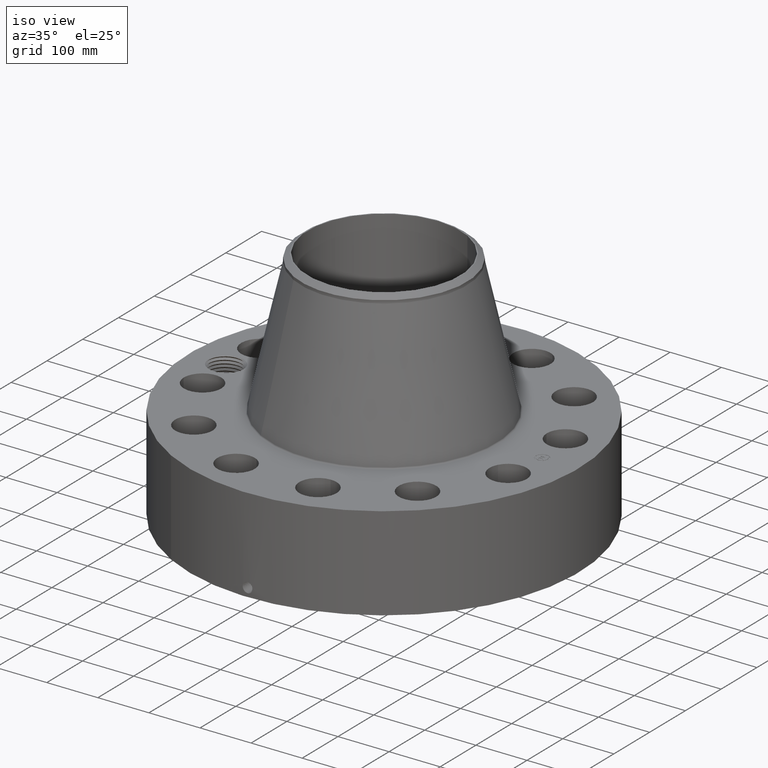
[diagram: clean part render]
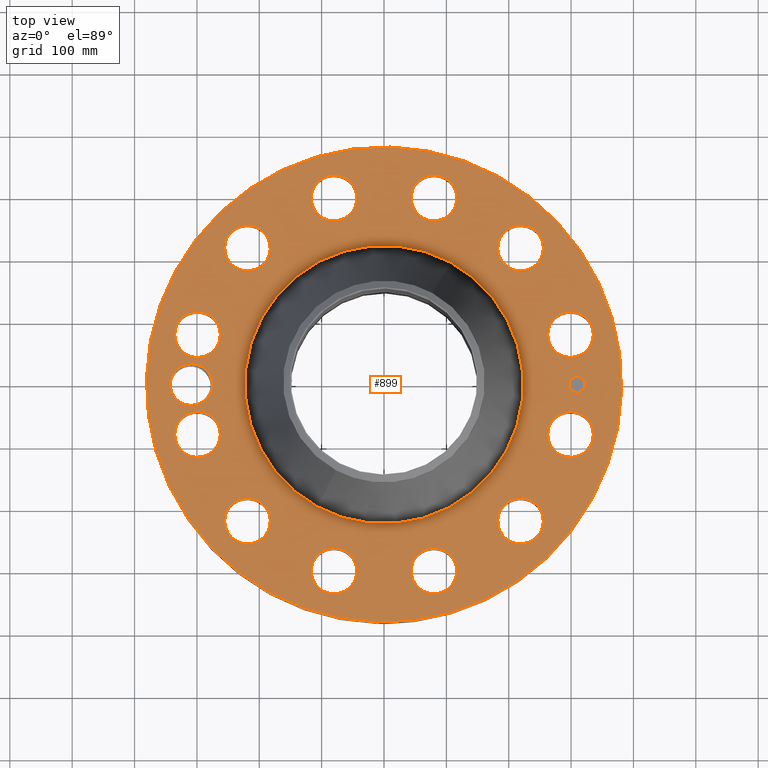
[diagram: tour spotlight — one face highlighted and labeled with its STEP entity id]
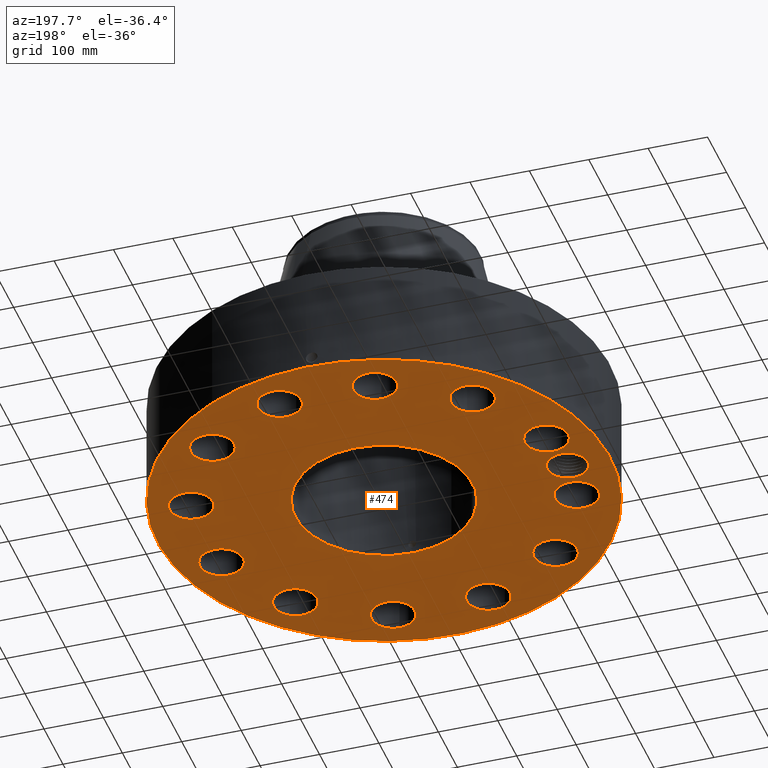
[diagram: tour spotlight — one face highlighted and labeled with its STEP entity id]
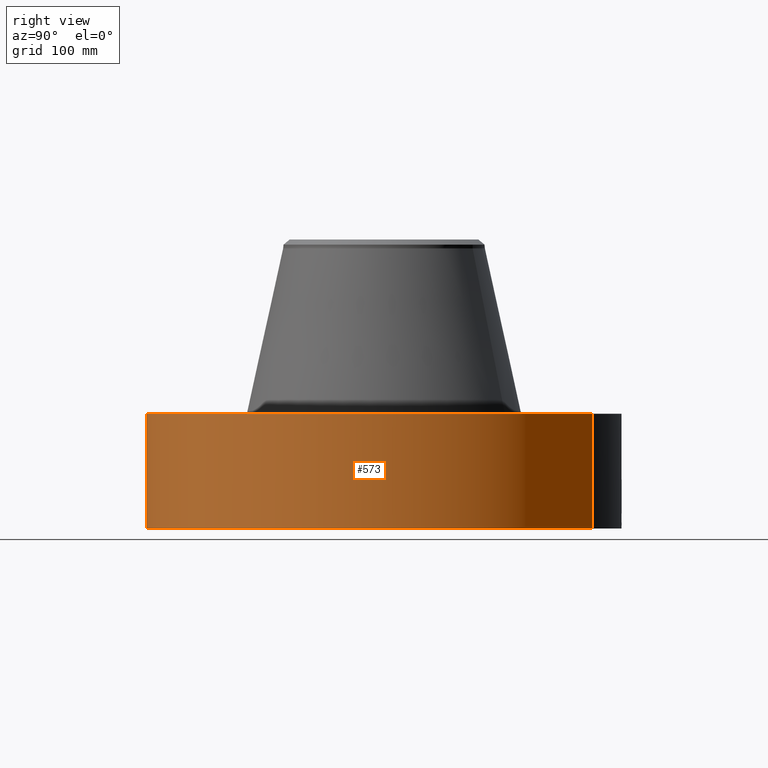
[diagram: tour spotlight — one face highlighted and labeled with its STEP entity id]
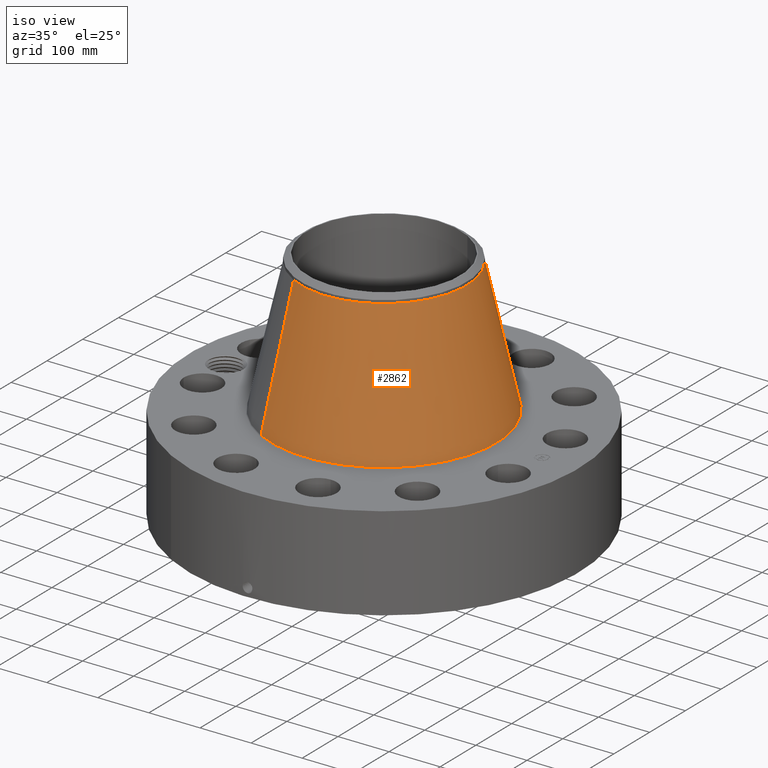
[diagram: tour spotlight — one face highlighted and labeled with its STEP entity id]
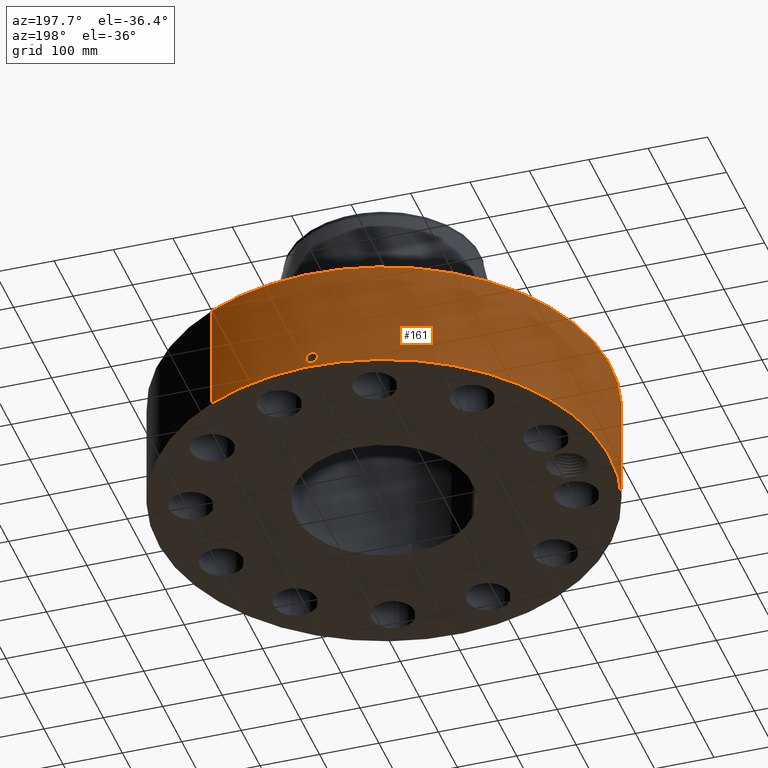
[diagram: tour spotlight — one face highlighted and labeled with its STEP entity id]
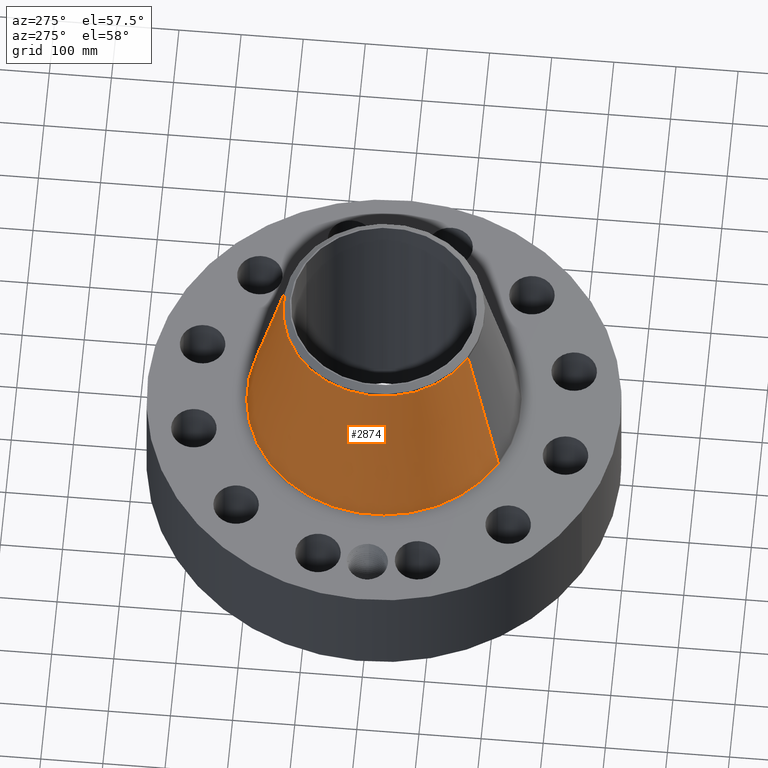
[diagram: tour spotlight — one face highlighted and labeled with its STEP entity id]
A machine part: a face-by-face anatomy tour. The part has 858 B-rep faces; the first image is the clean iso view, then the 6 largest visible faces are spotlighted one at a time (largest first), each with its STEP entity span.

Face 1 — top view, entity #899. In plain terms, the highlighted planar face has unit normal (0, 0, -1).
Definition (entity closure, byte-faithful):
#58=AXIS2_PLACEMENT_3D('Circle Axis2P3D',#56,#57,$) ;
#477=AXIS2_PLACEMENT_3D('Circle Axis2P3D',#475,#476,$) ;
#577=AXIS2_PLACEMENT_3D('Plane Axis2P3D',#574,#575,#576) ;
#631=AXIS2_PLACEMENT_3D('Circle Axis2P3D',#629,#630,$) ;
#638=AXIS2_PLACEMENT_3D('Circle Axis2P3D',#636,#637,$) ;
#649=AXIS2_PLACEMENT_3D('Circle Axis2P3D',#647,#648,$) ;
#658=AXIS2_PLACEMENT_3D('Circle Axis2P3D',#656,#657,$) ;
#667=AXIS2_PLACEMENT_3D('Circle Axis2P3D',#665,#666,$) ;
#676=AXIS2_PLACEMENT_3D('Circle Axis2P3D',#674,#675,$) ;
#685=AXIS2_PLACEMENT_3D('Circle Axis2P3D',#683,#684,$) ;
#694=AXIS2_PLACEMENT_3D('Circle Axis2P3D',#692,#693,$) ;
#703=AXIS2_PLACEMENT_3D('Circle Axis2P3D',#701,#702,$) ;
#712=AXIS2_PLACEMENT_3D('Circle Axis2P3D',#710,#711,$) ;
#721=AXIS2_PLACEMENT_3D('Circle Axis2P3D',#719,#720,$) ;
#730=AXIS2_PLACEMENT_3D('Circle Axis2P3D',#728,#729,$) ;
#739=AXIS2_PLACEMENT_3D('Circle Axis2P3D',#737,#738,$) ;
#748=AXIS2_PLACEMENT_3D('Circle Axis2P3D',#746,#747,$) ;
#757=AXIS2_PLACEMENT_3D('Circle Axis2P3D',#755,#756,$) ;
#766=AXIS2_PLACEMENT_3D('Circle Axis2P3D',#764,#765,$) ;
#775=AXIS2_PLACEMENT_3D('Circle Axis2P3D',#773,#774,$) ;
#784=AXIS2_PLACEMENT_3D('Circle Axis2P3D',#782,#783,$) ;
#793=AXIS2_PLACEMENT_3D('Circle Axis2P3D',#791,#792,$) ;
#802=AXIS2_PLACEMENT_3D('Circle Axis2P3D',#800,#801,$) ;
#811=AXIS2_PLACEMENT_3D('Circle Axis2P3D',#809,#810,$) ;
#820=AXIS2_PLACEMENT_3D('Circle Axis2P3D',#818,#819,$) ;
#829=AXIS2_PLACEMENT_3D('Circle Axis2P3D',#827,#828,$) ;
#838=AXIS2_PLACEMENT_3D('Circle Axis2P3D',#836,#837,$) ;
#847=AXIS2_PLACEMENT_3D('Circle Axis2P3D',#845,#846,$) ;
#856=AXIS2_PLACEMENT_3D('Circle Axis2P3D',#854,#855,$) ;
#865=AXIS2_PLACEMENT_3D('Circle Axis2P3D',#863,#864,$) ;
#874=AXIS2_PLACEMENT_3D('Circle Axis2P3D',#872,#873,$) ;
#883=AXIS2_PLACEMENT_3D('Circle Axis2P3D',#881,#882,$) ;
#892=AXIS2_PLACEMENT_3D('Circle Axis2P3D',#890,#891,$) ;
#53=CARTESIAN_POINT('Vertex',(-7.19138307909,-13.1637384284,7.50000000003)) ;
#56=CARTESIAN_POINT('Axis2P3D Location',(0.,0.,7.50000000003)) ;
#60=CARTESIAN_POINT('Vertex',(7.19138307909,13.1637384284,7.50000000003)) ;
#475=CARTESIAN_POINT('Axis2P3D Location',(0.,0.,7.50000000003)) ;
#574=CARTESIAN_POINT('Axis2P3D Location',(0.,15.0000000001,7.50000000003)) ;
#584=CARTESIAN_POINT('Control Point',(-10.815,2.23792987641E-015,7.50000000003)) ;
#585=CARTESIAN_POINT('Control Point',(-10.8181043886,0.106387664948,7.50000000003)) ;
#586=CARTESIAN_POINT('Control Point',(-10.8315027177,0.212331931019,7.50000000003)) ;
#587=CARTESIAN_POINT('Control Point',(-10.8551378903,0.316486348984,7.50000000003)) ;
#588=CARTESIAN_POINT('Control Point',(-10.9222404971,0.518595759052,7.50000000003)) ;
#589=CARTESIAN_POINT('Control Point',(-11.0267484141,0.703411024131,7.50000000003)) ;
#590=CARTESIAN_POINT('Control Point',(-11.087804617,0.790300602221,7.50000000003)) ;
#591=CARTESIAN_POINT('Control Point',(-11.225885257,0.950788052228,7.50000000003)) ;
#592=CARTESIAN_POINT('Control Point',(-11.3920140791,1.08108905007,7.50000000003)) ;
#593=CARTESIAN_POINT('Control Point',(-11.4811059879,1.13777676515,7.50000000003)) ;
#594=CARTESIAN_POINT('Control Point',(-11.6421466671,1.21918718611,7.50000000003)) ;
#595=CARTESIAN_POINT('Control Point',(-11.8137655454,1.27221198225,7.50000000003)) ;
#596=CARTESIAN_POINT('Control Point',(-11.8866300375,1.28920176067,7.50000000003)) ;
#597=CARTESIAN_POINT('Control Point',(-12.0041539219,1.30797279936,7.50000000003)) ;
#598=CARTESIAN_POINT('Control Point',(-12.1226331406,1.31342384394,7.50000000003)) ;
#599=CARTESIAN_POINT('Control Point',(-12.166798905,1.31359865779,7.50000000003)) ;
#600=CARTESIAN_POINT('Control Point',(-12.2108866702,1.31191939031,7.50000000003)) ;
#601=CARTESIAN_POINT('Control Point',(-12.254792488,1.30839670342,7.50000000003)) ;
#602=CARTESIAN_POINT('Vertex',(-10.815,2.23792987641E-015,7.50000000003)) ;
#604=CARTESIAN_POINT('Vertex',(-12.254792488,1.30839670342,7.50000000003)) ;
#608=CARTESIAN_POINT('Control Point',(-10.815,0.,7.50000000003)) ;
#609=CARTESIAN_POINT('Control Point',(-10.8181047717,-0.106400796831,7.50000000003)) ;
#610=CARTESIAN_POINT('Control Point',(-10.8315060307,-0.212358084797,7.50000000003)) ;
#611=CARTESIAN_POINT('Control Point',(-10.8551411697,-0.316512098373,7.50000000003)) ;
#612=CARTESIAN_POINT('Control Point',(-10.9222474014,-0.518634770297,7.50000000003)) ;
#613=CARTESIAN_POINT('Control Point',(-11.0267337317,-0.703405361113,7.50000000003)) ;
#614=CARTESIAN_POINT('Control Point',(-11.0877821427,-0.790276082492,7.50000000003)) ;
#615=CARTESIAN_POINT('Control Point',(-11.2258620948,-0.950760715598,7.50000000003)) ;
#616=CARTESIAN_POINT('Control Point',(-11.3919471007,-1.08104005127,7.50000000003)) ;
#617=CARTESIAN_POINT('Control Point',(-11.4810346097,-1.13773457756,7.50000000003)) ;
#618=CARTESIAN_POINT('Control Point',(-11.6688539432,-1.23271081716,7.50000000003)) ;
#619=CARTESIAN_POINT('Control Point',(-11.8710872242,-1.28907178961,7.50000000003)) ;
#620=CARTESIAN_POINT('Control Point',(-11.9745068211,-1.30711659513,7.50000000003)) ;
#621=CARTESIAN_POINT('Control Point',(-12.0933377745,-1.31586595494,7.50000000003)) ;
#622=CARTESIAN_POINT('Control Point',(-12.2116652214,-1.31125950766,7.50000000003)) ;
#623=CARTESIAN_POINT('Control Point',(-12.2260211776,-1.31050343795,7.50000000003)) ;
#624=CARTESIAN_POINT('Control Point',(-12.240362416,-1.30955082877,7.50000000003)) ;
#625=CARTESIAN_POINT('Control Point',(-12.2546852951,-1.30840200727,7.50000000003)) ;
#626=CARTESIAN_POINT('Vertex',(-12.2546852951,-1.30840200727,7.50000000003)) ;
#629=CARTESIAN_POINT('Axis2P3D Location',(-12.19,-1.34275792585E-014,7.50000000003)) ;
#633=CARTESIAN_POINT('Vertex',(-13.3396331561,0.628047455574,7.50000000003)) ;
#636=CARTESIAN_POINT('Axis2P3D Location',(-12.19,-1.34275792585E-014,7.50000000003)) ;
#647=CARTESIAN_POINT('Axis2P3D Location',(11.7746358225,-3.15500415981,7.50000000003)) ;
#651=CARTESIAN_POINT('Vertex',(10.5109169334,-2.46463138422,7.50000000003)) ;
#653=CARTESIAN_POINT('Vertex',(13.0383547116,-3.84537693541,7.50000000003)) ;
#656=CARTESIAN_POINT('Axis2P3D Location',(11.7746358225,-3.15500415981,7.50000000003)) ;
#665=CARTESIAN_POINT('Axis2P3D Location',(0.,0.,7.50000000003)) ;
#669=CARTESIAN_POINT('Vertex',(-4.21237981188,-7.71070952483,7.50000000003)) ;
#671=CARTESIAN_POINT('Vertex',(4.21237981188,7.71070952483,7.50000000003)) ;
#674=CARTESIAN_POINT('Axis2P3D Location',(0.,0.,7.50000000003)) ;
#683=CARTESIAN_POINT('Axis2P3D Location',(8.6196316627,-8.6196316627,7.50000000003)) ;
#687=CARTESIAN_POINT('Vertex',(9.36885793613,-9.84937146901,7.50000000003)) ;
#689=CARTESIAN_POINT('Vertex',(7.87040538927,-7.38989185639,7.50000000003)) ;
#692=CARTESIAN_POINT('Axis2P3D Location',(8.6196316627,-8.6196316627,7.50000000003)) ;
#701=CARTESIAN_POINT('Axis2P3D Location',(3.15500415981,-11.7746358225,7.50000000003)) ;
#705=CARTESIAN_POINT('Vertex',(3.18898324263,-13.2142348715,7.50000000003)) ;
#707=CARTESIAN_POINT('Vertex',(3.12102507699,-10.3350367735,7.50000000003)) ;
#710=CARTESIAN_POINT('Axis2P3D Location',(3.15500415981,-11.7746358225,7.50000000003)) ;
#719=CARTESIAN_POINT('Axis2P3D Location',(-3.15500415981,-11.7746358225,7.50000000003)) ;
#723=CARTESIAN_POINT('Vertex',(-3.84537693541,-13.0383547116,7.50000000003)) ;
#725=CARTESIAN_POINT('Vertex',(-2.46463138422,-10.5109169334,7.50000000003)) ;
#728=CARTESIAN_POINT('Axis2P3D Location',(-3.15500415981,-11.7746358225,7.50000000003)) ;
#737=CARTESIAN_POINT('Axis2P3D Location',(-8.6196316627,-8.6196316627,7.50000000003)) ;
#741=CARTESIAN_POINT('Vertex',(-9.84937146901,-9.36885793613,7.50000000003)) ;
#743=CARTESIAN_POINT('Vertex',(-7.38989185639,-7.87040538927,7.50000000003)) ;
#746=CARTESIAN_POINT('Axis2P3D Location',(-8.6196316627,-8.6196316627,7.50000000003)) ;
#755=CARTESIAN_POINT('Axis2P3D Location',(-11.7746358225,-3.15500415981,7.50000000003)) ;
#759=CARTESIAN_POINT('Vertex',(-13.2142348715,-3.18898324263,7.50000000003)) ;
#761=CARTESIAN_POINT('Vertex',(-10.3350367735,-3.12102507699,7.50000000003)) ;
#764=CARTESIAN_POINT('Axis2P3D Location',(-11.7746358225,-3.15500415981,7.50000000003)) ;
#773=CARTESIAN_POINT('Axis2P3D Location',(-11.7746358225,3.15500415981,7.50000000003)) ;
#777=CARTESIAN_POINT('Vertex',(-13.0383547116,3.84537693541,7.50000000003)) ;
#779=CARTESIAN_POINT('Vertex',(-10.5109169334,2.46463138422,7.50000000003)) ;
#782=CARTESIAN_POINT('Axis2P3D Location',(-11.7746358225,3.15500415981,7.50000000003)) ;
#791=CARTESIAN_POINT('Axis2P3D Location',(-8.6196316627,8.6196316627,7.50000000003)) ;
#795=CARTESIAN_POINT('Vertex',(-9.36885793613,9.84937146901,7.50000000003)) ;
#797=CARTESIAN_POINT('Vertex',(-7.87040538927,7.38989185639,7.50000000003)) ;
#800=CARTESIAN_POINT('Axis2P3D Location',(-8.6196316627,8.6196316627,7.50000000003)) ;
#809=CARTESIAN_POINT('Axis2P3D Location',(-3.15500415981,11.7746358225,7.50000000003)) ;
#813=CARTESIAN_POINT('Vertex',(-3.18898324263,13.2142348715,7.50000000003)) ;
#815=CARTESIAN_POINT('Vertex',(-3.12102507699,10.3350367735,7.50000000003)) ;
#818=CARTESIAN_POINT('Axis2P3D Location',(-3.15500415981,11.7746358225,7.50000000003)) ;
#827=CARTESIAN_POINT('Axis2P3D Location',(3.15500415981,11.7746358225,7.50000000003)) ;
#831=CARTESIAN_POINT('Vertex',(3.84537693541,13.0383547116,7.50000000003)) ;
#833=CARTESIAN_POINT('Vertex',(2.46463138422,10.5109169334,7.50000000003)) ;
#836=CARTESIAN_POINT('Axis2P3D Location',(3.15500415981,11.7746358225,7.50000000003)) ;
#845=CARTESIAN_POINT('Axis2P3D Location',(8.6196316627,8.6196316627,7.50000000003)) ;
#849=CARTESIAN_POINT('Vertex',(9.84937146901,9.36885793613,7.50000000003)) ;
#851=CARTESIAN_POINT('Vertex',(7.38989185639,7.87040538927,7.50000000003)) ;
#854=CARTESIAN_POINT('Axis2P3D Location',(8.6196316627,8.6196316627,7.50000000003)) ;
#863=CARTESIAN_POINT('Axis2P3D Location',(11.7746358225,3.15500415981,7.50000000003)) ;
#867=CARTESIAN_POINT('Vertex',(13.2142348715,3.18898324263,7.50000000003)) ;
#869=CARTESIAN_POINT('Vertex',(10.3350367735,3.12102507699,7.50000000003)) ;
#872=CARTESIAN_POINT('Axis2P3D Location',(11.7746358225,3.15500415981,7.50000000003)) ;
#881=CARTESIAN_POINT('Axis2P3D Location',(12.19,0.,7.50000000003)) ;
#885=CARTESIAN_POINT('Vertex',(12.19,0.499999995002,7.50000000003)) ;
#887=CARTESIAN_POINT('Vertex',(12.19,-0.499999995002,7.50000000003)) ;
#890=CARTESIAN_POINT('Axis2P3D Location',(12.19,0.,7.50000000003)) ;
#57=DIRECTION('Axis2P3D Direction',(0.,0.,-0.0393700787402)) ;
#476=DIRECTION('Axis2P3D Direction',(0.,0.,-0.0393700787402)) ;
#575=DIRECTION('Axis2P3D Direction',(0.,0.,-0.0393700787402)) ;
#576=DIRECTION('Axis2P3D XDirection',(0.0393700787402,0.,0.)) ;
#630=DIRECTION('Axis2P3D Direction',(0.,0.,-0.0393700787402)) ;
#637=DIRECTION('Axis2P3D Direction',(0.,0.,-0.0393700787402)) ;
#648=DIRECTION('Axis2P3D Direction',(0.,0.,-0.0393700787402)) ;
#657=DIRECTION('Axis2P3D Direction',(0.,0.,-0.0393700787402)) ;
#666=DIRECTION('Axis2P3D Direction',(0.,0.,-0.0393700787402)) ;
#675=DIRECTION('Axis2P3D Direction',(0.,0.,-0.0393700787402)) ;
#684=DIRECTION('Axis2P3D Direction',(0.,0.,-0.0393700787402)) ;
#693=DIRECTION('Axis2P3D Direction',(0.,0.,-0.0393700787402)) ;
#702=DIRECTION('Axis2P3D Direction',(0.,0.,-0.0393700787402)) ;
#711=DIRECTION('Axis2P3D Direction',(0.,0.,-0.0393700787402)) ;
#720=DIRECTION('Axis2P3D Direction',(0.,0.,-0.0393700787402)) ;
#729=DIRECTION('Axis2P3D Direction',(0.,0.,-0.0393700787402)) ;
#738=DIRECTION('Axis2P3D Direction',(0.,0.,-0.0393700787402)) ;
#747=DIRECTION('Axis2P3D Direction',(0.,0.,-0.0393700787402)) ;
#756=DIRECTION('Axis2P3D Direction',(0.,0.,-0.0393700787402)) ;
#765=DIRECTION('Axis2P3D Direction',(0.,0.,-0.0393700787402)) ;
#774=DIRECTION('Axis2P3D Direction',(0.,0.,-0.0393700787402)) ;
#783=DIRECTION('Axis2P3D Direction',(0.,0.,-0.0393700787402)) ;
#792=DIRECTION('Axis2P3D Direction',(0.,0.,-0.0393700787402)) ;
#801=DIRECTION('Axis2P3D Direction',(0.,0.,-0.0393700787402)) ;
#810=DIRECTION('Axis2P3D Direction',(0.,0.,-0.0393700787402)) ;
#819=DIRECTION('Axis2P3D Direction',(0.,0.,-0.0393700787402)) ;
#828=DIRECTION('Axis2P3D Direction',(0.,0.,-0.0393700787402)) ;
#837=DIRECTION('Axis2P3D Direction',(0.,0.,-0.0393700787402)) ;
#846=DIRECTION('Axis2P3D Direction',(0.,0.,-0.0393700787402)) ;
#855=DIRECTION('Axis2P3D Direction',(0.,0.,-0.0393700787402)) ;
#864=DIRECTION('Axis2P3D Direction',(0.,0.,-0.0393700787402)) ;
#873=DIRECTION('Axis2P3D Direction',(0.,0.,-0.0393700787402)) ;
#882=DIRECTION('Axis2P3D Direction',(0.,0.,-0.0393700787402)) ;
#891=DIRECTION('Axis2P3D Direction',(0.,0.,-0.0393700787402)) ;
#580=ORIENTED_EDGE('',*,*,#479,.F.) ;
#581=ORIENTED_EDGE('',*,*,#62,.F.) ;
#642=ORIENTED_EDGE('',*,*,#606,.F.) ;
#643=ORIENTED_EDGE('',*,*,#628,.T.) ;
#644=ORIENTED_EDGE('',*,*,#635,.T.) ;
#645=ORIENTED_EDGE('',*,*,#640,.T.) ;
#662=ORIENTED_EDGE('',*,*,#655,.T.) ;
#663=ORIENTED_EDGE('',*,*,#660,.T.) ;
#680=ORIENTED_EDGE('',*,*,#673,.T.) ;
#681=ORIENTED_EDGE('',*,*,#678,.T.) ;
#698=ORIENTED_EDGE('',*,*,#691,.T.) ;
#699=ORIENTED_EDGE('',*,*,#696,.T.) ;
#716=ORIENTED_EDGE('',*,*,#709,.T.) ;
#717=ORIENTED_EDGE('',*,*,#714,.T.) ;
#734=ORIENTED_EDGE('',*,*,#727,.T.) ;
#735=ORIENTED_EDGE('',*,*,#732,.T.) ;
#752=ORIENTED_EDGE('',*,*,#745,.T.) ;
#753=ORIENTED_EDGE('',*,*,#750,.T.) ;
#770=ORIENTED_EDGE('',*,*,#763,.T.) ;
#771=ORIENTED_EDGE('',*,*,#768,.T.) ;
#788=ORIENTED_EDGE('',*,*,#781,.T.) ;
#789=ORIENTED_EDGE('',*,*,#786,.T.) ;
#806=ORIENTED_EDGE('',*,*,#799,.T.) ;
#807=ORIENTED_EDGE('',*,*,#804,.T.) ;
#824=ORIENTED_EDGE('',*,*,#817,.T.) ;
#825=ORIENTED_EDGE('',*,*,#822,.T.) ;
#842=ORIENTED_EDGE('',*,*,#835,.T.) ;
#843=ORIENTED_EDGE('',*,*,#840,.T.) ;
#860=ORIENTED_EDGE('',*,*,#853,.T.) ;
#861=ORIENTED_EDGE('',*,*,#858,.T.) ;
#878=ORIENTED_EDGE('',*,*,#871,.T.) ;
#879=ORIENTED_EDGE('',*,*,#876,.T.) ;
#896=ORIENTED_EDGE('',*,*,#889,.T.) ;
#897=ORIENTED_EDGE('',*,*,#894,.T.) ;
#646=FACE_BOUND('',#641,.T.) ;
#664=FACE_BOUND('',#661,.T.) ;
#682=FACE_BOUND('',#679,.T.) ;
#700=FACE_BOUND('',#697,.T.) ;
#718=FACE_BOUND('',#715,.T.) ;
#736=FACE_BOUND('',#733,.T.) ;
#754=FACE_BOUND('',#751,.T.) ;
#772=FACE_BOUND('',#769,.T.) ;
#790=FACE_BOUND('',#787,.T.) ;
#808=FACE_BOUND('',#805,.T.) ;
#826=FACE_BOUND('',#823,.T.) ;
#844=FACE_BOUND('',#841,.T.) ;
#862=FACE_BOUND('',#859,.T.) ;
#880=FACE_BOUND('',#877,.T.) ;
#898=FACE_BOUND('',#895,.T.) ;
#899=ADVANCED_FACE('PartBody',(#582,#646,#664,#682,#700,#718,#736,#754,#772,#790,#808,#826,#844,#862,#880,#898),#578,.F.) ;
#583=B_SPLINE_CURVE_WITH_KNOTS('',5,(#584,#585,#586,#587,#588,#589,#590,#591,#592,#593,#594,#595,#596,#597,#598,#599,#600,#601),.UNSPECIFIED.,.F.,.U.,(6,3,3,3,3,6),(0.,18.6939141986,37.3935551402,56.0896616708,69.4369080505,77.3615944958),.UNSPECIFIED.) ;
#607=B_SPLINE_CURVE_WITH_KNOTS('',5,(#608,#609,#610,#611,#612,#613,#614,#615,#616,#617,#618,#619,#620,#621,#622,#623,#624,#625),.UNSPECIFIED.,.F.,.U.,(6,3,3,3,3,6),(0.,18.6962216674,37.4059908519,56.1238849483,74.8256383138,77.4101659824),.UNSPECIFIED.) ;
#59=CIRCLE('generated circle',#58,15.0000000001) ;
#478=CIRCLE('generated circle',#477,15.0000000001) ;
#632=CIRCLE('generated circle',#631,1.31000000001) ;
#639=CIRCLE('generated circle',#638,1.31000000001) ;
#650=CIRCLE('generated circle',#649,1.44000000001) ;
#659=CIRCLE('generated circle',#658,1.44000000001) ;
#668=CIRCLE('generated circle',#667,8.78630667891) ;
#677=CIRCLE('generated circle',#676,8.78630667891) ;
#686=CIRCLE('generated circle',#685,1.44000000001) ;
#695=CIRCLE('generated circle',#694,1.44000000001) ;
#704=CIRCLE('generated circle',#703,1.44000000001) ;
#713=CIRCLE('generated circle',#712,1.44000000001) ;
#722=CIRCLE('generated circle',#721,1.44000000001) ;
#731=CIRCLE('generated circle',#730,1.44000000001) ;
#740=CIRCLE('generated circle',#739,1.44000000001) ;
#749=CIRCLE('generated circle',#748,1.44000000001) ;
#758=CIRCLE('generated circle',#757,1.44000000001) ;
#767=CIRCLE('generated circle',#766,1.44000000001) ;
#776=CIRCLE('generated circle',#775,1.44000000001) ;
#785=CIRCLE('generated circle',#784,1.44000000001) ;
#794=CIRCLE('generated circle',#793,1.44000000001) ;
#803=CIRCLE('generated circle',#802,1.44000000001) ;
#812=CIRCLE('generated circle',#811,1.44000000001) ;
#821=CIRCLE('generated circle',#820,1.44000000001) ;
#830=CIRCLE('generated circle',#829,1.44000000001) ;
#839=CIRCLE('generated circle',#838,1.44000000001) ;
#848=CIRCLE('generated circle',#847,1.44000000001) ;
#857=CIRCLE('generated circle',#856,1.44000000001) ;
#866=CIRCLE('generated circle',#865,1.44000000001) ;
#875=CIRCLE('generated circle',#874,1.44000000001) ;
#884=CIRCLE('generated circle',#883,0.499999995002) ;
#893=CIRCLE('generated circle',#892,0.499999995002) ;
#62=EDGE_CURVE('',#54,#61,#59,.T.) ;
#479=EDGE_CURVE('',#61,#54,#478,.T.) ;
#606=EDGE_CURVE('',#603,#605,#583,.T.) ;
#628=EDGE_CURVE('',#603,#627,#607,.T.) ;
#635=EDGE_CURVE('',#627,#634,#632,.T.) ;
#640=EDGE_CURVE('',#634,#605,#639,.T.) ;
#655=EDGE_CURVE('',#652,#654,#650,.T.) ;
#660=EDGE_CURVE('',#654,#652,#659,.T.) ;
#673=EDGE_CURVE('',#670,#672,#668,.T.) ;
#678=EDGE_CURVE('',#672,#670,#677,.T.) ;
#691=EDGE_CURVE('',#688,#690,#686,.T.) ;
#696=EDGE_CURVE('',#690,#688,#695,.T.) ;
#709=EDGE_CURVE('',#706,#708,#704,.T.) ;
#714=EDGE_CURVE('',#708,#706,#713,.T.) ;
#727=EDGE_CURVE('',#724,#726,#722,.T.) ;
#732=EDGE_CURVE('',#726,#724,#731,.T.) ;
#745=EDGE_CURVE('',#742,#744,#740,.T.) ;
#750=EDGE_CURVE('',#744,#742,#749,.T.) ;
#763=EDGE_CURVE('',#760,#762,#758,.T.) ;
#768=EDGE_CURVE('',#762,#760,#767,.T.) ;
#781=EDGE_CURVE('',#778,#780,#776,.T.) ;
#786=EDGE_CURVE('',#780,#778,#785,.T.) ;
#799=EDGE_CURVE('',#796,#798,#794,.T.) ;
#804=EDGE_CURVE('',#798,#796,#803,.T.) ;
#817=EDGE_CURVE('',#814,#816,#812,.T.) ;
#822=EDGE_CURVE('',#816,#814,#821,.T.) ;
#835=EDGE_CURVE('',#832,#834,#830,.T.) ;
#840=EDGE_CURVE('',#834,#832,#839,.T.) ;
#853=EDGE_CURVE('',#850,#852,#848,.T.) ;
#858=EDGE_CURVE('',#852,#850,#857,.T.) ;
#871=EDGE_CURVE('',#868,#870,#866,.T.) ;
#876=EDGE_CURVE('',#870,#868,#875,.T.) ;
#889=EDGE_CURVE('',#886,#888,#884,.T.) ;
#894=EDGE_CURVE('',#888,#886,#893,.T.) ;
#579=EDGE_LOOP('',(#580,#581)) ;
#641=EDGE_LOOP('',(#642,#643,#644,#645)) ;
#661=EDGE_LOOP('',(#662,#663)) ;
#679=EDGE_LOOP('',(#680,#681)) ;
#697=EDGE_LOOP('',(#698,#699)) ;
#715=EDGE_LOOP('',(#716,#717)) ;
#733=EDGE_LOOP('',(#734,#735)) ;
#751=EDGE_LOOP('',(#752,#753)) ;
#769=EDGE_LOOP('',(#770,#771)) ;
#787=EDGE_LOOP('',(#788,#789)) ;
#805=EDGE_LOOP('',(#806,#807)) ;
#823=EDGE_LOOP('',(#824,#825)) ;
#841=EDGE_LOOP('',(#842,#843)) ;
#859=EDGE_LOOP('',(#860,#861)) ;
#877=EDGE_LOOP('',(#878,#879)) ;
#895=EDGE_LOOP('',(#896,#897)) ;
#582=FACE_OUTER_BOUND('',#579,.T.) ;
#578=PLANE('',#577) ;
#54=VERTEX_POINT('',#53) ;
#61=VERTEX_POINT('',#60) ;
#603=VERTEX_POINT('',#602) ;
#605=VERTEX_POINT('',#604) ;
#627=VERTEX_POINT('',#626) ;
#634=VERTEX_POINT('',#633) ;
#652=VERTEX_POINT('',#651) ;
#654=VERTEX_POINT('',#653) ;
#670=VERTEX_POINT('',#669) ;
#672=VERTEX_POINT('',#671) ;
#688=VERTEX_POINT('',#687) ;
#690=VERTEX_POINT('',#689) ;
#706=VERTEX_POINT('',#705) ;
#708=VERTEX_POINT('',#707) ;
#724=VERTEX_POINT('',#723) ;
#726=VERTEX_POINT('',#725) ;
#742=VERTEX_POINT('',#741) ;
#744=VERTEX_POINT('',#743) ;
#760=VERTEX_POINT('',#759) ;
#762=VERTEX_POINT('',#761) ;
#778=VERTEX_POINT('',#777) ;
#780=VERTEX_POINT('',#779) ;
#796=VERTEX_POINT('',#795) ;
#798=VERTEX_POINT('',#797) ;
#814=VERTEX_POINT('',#813) ;
#816=VERTEX_POINT('',#815) ;
#832=VERTEX_POINT('',#831) ;
#834=VERTEX_POINT('',#833) ;
#850=VERTEX_POINT('',#849) ;
#852=VERTEX_POINT('',#851) ;
#868=VERTEX_POINT('',#867) ;
#870=VERTEX_POINT('',#869) ;
#886=VERTEX_POINT('',#885) ;
#888=VERTEX_POINT('',#887) ;

Face 2 — auxiliary view, entity #474. In plain terms, the highlighted planar face has unit normal (0, 0, -1).
Definition (entity closure, byte-faithful):
#42=AXIS2_PLACEMENT_3D('Circle Axis2P3D',#40,#41,$) ;
#165=AXIS2_PLACEMENT_3D('Plane Axis2P3D',#162,#163,#164) ;
#169=AXIS2_PLACEMENT_3D('Circle Axis2P3D',#167,#168,$) ;
#178=AXIS2_PLACEMENT_3D('Circle Axis2P3D',#176,#177,$) ;
#187=AXIS2_PLACEMENT_3D('Circle Axis2P3D',#185,#186,$) ;
#242=AXIS2_PLACEMENT_3D('Circle Axis2P3D',#240,#241,$) ;
#251=AXIS2_PLACEMENT_3D('Circle Axis2P3D',#249,#250,$) ;
#260=AXIS2_PLACEMENT_3D('Circle Axis2P3D',#258,#259,$) ;
#269=AXIS2_PLACEMENT_3D('Circle Axis2P3D',#267,#268,$) ;
#278=AXIS2_PLACEMENT_3D('Circle Axis2P3D',#276,#277,$) ;
#287=AXIS2_PLACEMENT_3D('Circle Axis2P3D',#285,#286,$) ;
#296=AXIS2_PLACEMENT_3D('Circle Axis2P3D',#294,#295,$) ;
#305=AXIS2_PLACEMENT_3D('Circle Axis2P3D',#303,#304,$) ;
#314=AXIS2_PLACEMENT_3D('Circle Axis2P3D',#312,#313,$) ;
#323=AXIS2_PLACEMENT_3D('Circle Axis2P3D',#321,#322,$) ;
#332=AXIS2_PLACEMENT_3D('Circle Axis2P3D',#330,#331,$) ;
#341=AXIS2_PLACEMENT_3D('Circle Axis2P3D',#339,#340,$) ;
#350=AXIS2_PLACEMENT_3D('Circle Axis2P3D',#348,#349,$) ;
#359=AXIS2_PLACEMENT_3D('Circle Axis2P3D',#357,#358,$) ;
#368=AXIS2_PLACEMENT_3D('Circle Axis2P3D',#366,#367,$) ;
#377=AXIS2_PLACEMENT_3D('Circle Axis2P3D',#375,#376,$) ;
#386=AXIS2_PLACEMENT_3D('Circle Axis2P3D',#384,#385,$) ;
#395=AXIS2_PLACEMENT_3D('Circle Axis2P3D',#393,#394,$) ;
#404=AXIS2_PLACEMENT_3D('Circle Axis2P3D',#402,#403,$) ;
#413=AXIS2_PLACEMENT_3D('Circle Axis2P3D',#411,#412,$) ;
#422=AXIS2_PLACEMENT_3D('Circle Axis2P3D',#420,#421,$) ;
#431=AXIS2_PLACEMENT_3D('Circle Axis2P3D',#429,#430,$) ;
#440=AXIS2_PLACEMENT_3D('Circle Axis2P3D',#438,#439,$) ;
#449=AXIS2_PLACEMENT_3D('Circle Axis2P3D',#447,#448,$) ;
#458=AXIS2_PLACEMENT_3D('Circle Axis2P3D',#456,#457,$) ;
#467=AXIS2_PLACEMENT_3D('Circle Axis2P3D',#465,#466,$) ;
#40=CARTESIAN_POINT('Axis2P3D Location',(0.,0.,0.250000000001)) ;
#44=CARTESIAN_POINT('Vertex',(-7.19138307909,-13.1637384284,0.250000000001)) ;
#46=CARTESIAN_POINT('Vertex',(7.19138307909,13.1637384284,0.250000000001)) ;
#162=CARTESIAN_POINT('Axis2P3D Location',(0.,5.87500000002,0.250000000001)) ;
#167=CARTESIAN_POINT('Axis2P3D Location',(0.,0.,0.250000000001)) ;
#176=CARTESIAN_POINT('Axis2P3D Location',(-12.19,-1.1189649382E-015,0.250000000001)) ;
#180=CARTESIAN_POINT('Vertex',(-13.3396331561,0.628047455574,0.250000000001)) ;
#182=CARTESIAN_POINT('Vertex',(-12.2547918681,1.30839673412,0.250000000001)) ;
#185=CARTESIAN_POINT('Axis2P3D Location',(-12.19,-1.1189649382E-015,0.250000000001)) ;
#189=CARTESIAN_POINT('Vertex',(-12.2546850542,-1.30840201917,0.250000000001)) ;
#193=CARTESIAN_POINT('Control Point',(-10.815,4.58775624664E-014,0.250000000001)) ;
#194=CARTESIAN_POINT('Control Point',(-10.818104769,-0.106400705331,0.250000000001)) ;
#195=CARTESIAN_POINT('Control Point',(-10.8315060031,-0.212358055664,0.250000000001)) ;
#196=CARTESIAN_POINT('Control Point',(-10.8551411326,-0.316512214192,0.250000000001)) ;
#197=CARTESIAN_POINT('Control Point',(-10.9222473538,-0.518634967094,0.250000000001)) ;
#198=CARTESIAN_POINT('Control Point',(-11.0267337946,-0.703405686733,0.250000000001)) ;
#199=CARTESIAN_POINT('Control Point',(-11.0877822005,-0.790276337269,0.250000000001)) ;
#200=CARTESIAN_POINT('Control Point',(-11.2258622292,-0.95076090328,0.250000000001)) ;
#201=CARTESIAN_POINT('Control Point',(-11.3919472835,-1.08104011968,0.250000000001)) ;
#202=CARTESIAN_POINT('Control Point',(-11.4810348463,-1.13773460615,0.250000000001)) ;
#203=CARTESIAN_POINT('Control Point',(-11.6688543354,-1.23271082885,0.250000000001)) ;
#204=CARTESIAN_POINT('Control Point',(-11.8710876022,-1.28907177184,0.250000000001)) ;
#205=CARTESIAN_POINT('Control Point',(-11.974507216,-1.30711657642,0.250000000001)) ;
#206=CARTESIAN_POINT('Control Point',(-12.0933380327,-1.31586592353,0.250000000001)) ;
#207=CARTESIAN_POINT('Control Point',(-12.2116652943,-1.31125948948,0.250000000001)) ;
#208=CARTESIAN_POINT('Control Point',(-12.2260211462,-1.31050342716,0.250000000001)) ;
#209=CARTESIAN_POINT('Control Point',(-12.2403622799,-1.309550828,0.250000000001)) ;
#210=CARTESIAN_POINT('Control Point',(-12.2546850542,-1.30840201917,0.250000000001)) ;
#211=CARTESIAN_POINT('Vertex',(-10.815,4.81154923428E-014,0.250000000001)) ;
#215=CARTESIAN_POINT('Control Point',(-10.815,4.81154923428E-014,0.250000000001)) ;
#216=CARTESIAN_POINT('Control Point',(-10.8181043875,0.106387628937,0.250000000001)) ;
#217=CARTESIAN_POINT('Control Point',(-10.8315027381,0.212331881971,0.250000000001)) ;
#218=CARTESIAN_POINT('Control Point',(-10.8551379223,0.316486292024,0.250000000001)) ;
#219=CARTESIAN_POINT('Control Point',(-10.922240533,0.518595724587,0.250000000001)) ;
#220=CARTESIAN_POINT('Control Point',(-11.0267484122,0.703411003688,0.250000000001)) ;
#221=CARTESIAN_POINT('Control Point',(-11.087804599,0.790300597187,0.250000000001)) ;
#222=CARTESIAN_POINT('Control Point',(-11.2258851987,0.950788050571,0.250000000001)) ;
#223=CARTESIAN_POINT('Control Point',(-11.3920139815,1.08108902869,0.250000000001)) ;
#224=CARTESIAN_POINT('Control Point',(-11.481105865,1.13777672633,0.250000000001)) ;
#225=CARTESIAN_POINT('Control Point',(-11.642146527,1.21918713939,0.250000000001)) ;
#226=CARTESIAN_POINT('Control Point',(-11.8137653973,1.27221194491,0.250000000001)) ;
#227=CARTESIAN_POINT('Control Point',(-11.8866299044,1.2892017336,0.250000000001)) ;
#228=CARTESIAN_POINT('Control Point',(-12.0041536883,1.30797277131,0.250000000001)) ;
#229=CARTESIAN_POINT('Control Point',(-12.1226328195,1.3134238289,0.250000000001)) ;
#230=CARTESIAN_POINT('Control Point',(-12.1667984789,1.31359865145,0.250000000001)) ;
#231=CARTESIAN_POINT('Control Point',(-12.2108861442,1.31191939938,0.250000000001)) ;
#232=CARTESIAN_POINT('Control Point',(-12.2547918681,1.30839673412,0.250000000001)) ;
#240=CARTESIAN_POINT('Axis2P3D Location',(11.7746358225,-3.15500415981,0.250000000001)) ;
#244=CARTESIAN_POINT('Vertex',(13.0383547116,-3.84537693541,0.250000000001)) ;
#246=CARTESIAN_POINT('Vertex',(10.5109169334,-2.46463138422,0.250000000001)) ;
#249=CARTESIAN_POINT('Axis2P3D Location',(11.7746358225,-3.15500415981,0.250000000001)) ;
#258=CARTESIAN_POINT('Axis2P3D Location',(0.,0.,0.250000000001)) ;
#262=CARTESIAN_POINT('Vertex',(2.81662503931,5.15579755113,0.250000000001)) ;
#264=CARTESIAN_POINT('Vertex',(-2.81662503931,-5.15579755113,0.250000000001)) ;
#267=CARTESIAN_POINT('Axis2P3D Location',(0.,0.,0.250000000001)) ;
#276=CARTESIAN_POINT('Axis2P3D Location',(8.6196316627,-8.6196316627,0.250000000001)) ;
#280=CARTESIAN_POINT('Vertex',(7.87040538927,-7.38989185639,0.250000000001)) ;
#282=CARTESIAN_POINT('Vertex',(9.36885793613,-9.84937146901,0.250000000001)) ;
#285=CARTESIAN_POINT('Axis2P3D Location',(8.6196316627,-8.6196316627,0.250000000001)) ;
#294=CARTESIAN_POINT('Axis2P3D Location',(3.15500415981,-11.7746358225,0.250000000001)) ;
#298=CARTESIAN_POINT('Vertex',(3.12102507699,-10.3350367735,0.250000000001)) ;
#300=CARTESIAN_POINT('Vertex',(3.18898324263,-13.2142348715,0.250000000001)) ;
#303=CARTESIAN_POINT('Axis2P3D Location',(3.15500415981,-11.7746358225,0.250000000001)) ;
#312=CARTESIAN_POINT('Axis2P3D Location',(-3.15500415981,-11.7746358225,0.250000000001)) ;
#316=CARTESIAN_POINT('Vertex',(-2.46463138422,-10.5109169334,0.250000000001)) ;
#318=CARTESIAN_POINT('Vertex',(-3.84537693541,-13.0383547116,0.250000000001)) ;
#321=CARTESIAN_POINT('Axis2P3D Location',(-3.15500415981,-11.7746358225,0.250000000001)) ;
#330=CARTESIAN_POINT('Axis2P3D Location',(-8.6196316627,-8.6196316627,0.250000000001)) ;
#334=CARTESIAN_POINT('Vertex',(-7.38989185639,-7.87040538927,0.250000000001)) ;
#336=CARTESIAN_POINT('Vertex',(-9.84937146901,-9.36885793613,0.250000000001)) ;
#339=CARTESIAN_POINT('Axis2P3D Location',(-8.6196316627,-8.6196316627,0.250000000001)) ;
#348=CARTESIAN_POINT('Axis2P3D Location',(-11.7746358225,-3.15500415981,0.250000000001)) ;
#352=CARTESIAN_POINT('Vertex',(-10.3350367735,-3.12102507699,0.250000000001)) ;
#354=CARTESIAN_POINT('Vertex',(-13.2142348715,-3.18898324263,0.250000000001)) ;
#357=CARTESIAN_POINT('Axis2P3D Location',(-11.7746358225,-3.15500415981,0.250000000001)) ;
#366=CARTESIAN_POINT('Axis2P3D Location',(-11.7746358225,3.15500415981,0.250000000001)) ;
#370=CARTESIAN_POINT('Vertex',(-10.5109169334,2.46463138422,0.250000000001)) ;
#372=CARTESIAN_POINT('Vertex',(-13.0383547116,3.84537693541,0.250000000001)) ;
#375=CARTESIAN_POINT('Axis2P3D Location',(-11.7746358225,3.15500415981,0.250000000001)) ;
#384=CARTESIAN_POINT('Axis2P3D Location',(-8.6196316627,8.6196316627,0.250000000001)) ;
#388=CARTESIAN_POINT('Vertex',(-7.87040538927,7.38989185639,0.250000000001)) ;
#390=CARTESIAN_POINT('Vertex',(-9.36885793613,9.84937146901,0.250000000001)) ;
#393=CARTESIAN_POINT('Axis2P3D Location',(-8.6196316627,8.6196316627,0.250000000001)) ;
#402=CARTESIAN_POINT('Axis2P3D Location',(-3.15500415981,11.7746358225,0.250000000001)) ;
#406=CARTESIAN_POINT('Vertex',(-3.12102507699,10.3350367735,0.250000000001)) ;
#408=CARTESIAN_POINT('Vertex',(-3.18898324263,13.2142348715,0.250000000001)) ;
#411=CARTESIAN_POINT('Axis2P3D Location',(-3.15500415981,11.7746358225,0.250000000001)) ;
#420=CARTESIAN_POINT('Axis2P3D Location',(3.15500415981,11.7746358225,0.250000000001)) ;
#424=CARTESIAN_POINT('Vertex',(2.46463138422,10.5109169334,0.250000000001)) ;
#426=CARTESIAN_POINT('Vertex',(3.84537693541,13.0383547116,0.250000000001)) ;
#429=CARTESIAN_POINT('Axis2P3D Location',(3.15500415981,11.7746358225,0.250000000001)) ;
#438=CARTESIAN_POINT('Axis2P3D Location',(8.6196316627,8.6196316627,0.250000000001)) ;
#442=CARTESIAN_POINT('Vertex',(7.38989185639,7.87040538927,0.250000000001)) ;
#444=CARTESIAN_POINT('Vertex',(9.84937146901,9.36885793613,0.250000000001)) ;
#447=CARTESIAN_POINT('Axis2P3D Location',(8.6196316627,8.6196316627,0.250000000001)) ;
#456=CARTESIAN_POINT('Axis2P3D Location',(11.7746358225,3.15500415981,0.250000000001)) ;
#460=CARTESIAN_POINT('Vertex',(10.3350367735,3.12102507699,0.250000000001)) ;
#462=CARTESIAN_POINT('Vertex',(13.2142348715,3.18898324263,0.250000000001)) ;
#465=CARTESIAN_POINT('Axis2P3D Location',(11.7746358225,3.15500415981,0.250000000001)) ;
#41=DIRECTION('Axis2P3D Direction',(0.,0.,-0.0393700787402)) ;
#163=DIRECTION('Axis2P3D Direction',(0.,0.,-0.0393700787402)) ;
#164=DIRECTION('Axis2P3D XDirection',(0.0393700787402,0.,0.)) ;
#168=DIRECTION('Axis2P3D Direction',(0.,0.,-0.0393700787402)) ;
#177=DIRECTION('Axis2P3D Direction',(0.,0.,-0.0393700787402)) ;
#186=DIRECTION('Axis2P3D Direction',(0.,0.,-0.0393700787402)) ;
#241=DIRECTION('Axis2P3D Direction',(0.,0.,-0.0393700787402)) ;
#250=DIRECTION('Axis2P3D Direction',(0.,0.,-0.0393700787402)) ;
#259=DIRECTION('Axis2P3D Direction',(0.,0.,-0.0393700787402)) ;
#268=DIRECTION('Axis2P3D Direction',(0.,0.,-0.0393700787402)) ;
#277=DIRECTION('Axis2P3D Direction',(0.,0.,-0.0393700787402)) ;
#286=DIRECTION('Axis2P3D Direction',(0.,0.,-0.0393700787402)) ;
#295=DIRECTION('Axis2P3D Direction',(0.,0.,-0.0393700787402)) ;
#304=DIRECTION('Axis2P3D Direction',(0.,0.,-0.0393700787402)) ;
#313=DIRECTION('Axis2P3D Direction',(0.,0.,-0.0393700787402)) ;
#322=DIRECTION('Axis2P3D Direction',(0.,0.,-0.0393700787402)) ;
#331=DIRECTION('Axis2P3D Direction',(0.,0.,-0.0393700787402)) ;
#340=DIRECTION('Axis2P3D Direction',(0.,0.,-0.0393700787402)) ;
#349=DIRECTION('Axis2P3D Direction',(0.,0.,-0.0393700787402)) ;
#358=DIRECTION('Axis2P3D Direction',(0.,0.,-0.0393700787402)) ;
#367=DIRECTION('Axis2P3D Direction',(0.,0.,-0.0393700787402)) ;
#376=DIRECTION('Axis2P3D Direction',(0.,0.,-0.0393700787402)) ;
#385=DIRECTION('Axis2P3D Direction',(0.,0.,-0.0393700787402)) ;
#394=DIRECTION('Axis2P3D Direction',(0.,0.,-0.0393700787402)) ;
#403=DIRECTION('Axis2P3D Direction',(0.,0.,-0.0393700787402)) ;
#412=DIRECTION('Axis2P3D Direction',(0.,0.,-0.0393700787402)) ;
#421=DIRECTION('Axis2P3D Direction',(0.,0.,-0.0393700787402)) ;
#430=DIRECTION('Axis2P3D Direction',(0.,0.,-0.0393700787402)) ;
#439=DIRECTION('Axis2P3D Direction',(0.,0.,-0.0393700787402)) ;
#448=DIRECTION('Axis2P3D Direction',(0.,0.,-0.0393700787402)) ;
#457=DIRECTION('Axis2P3D Direction',(0.,0.,-0.0393700787402)) ;
#466=DIRECTION('Axis2P3D Direction',(0.,0.,-0.0393700787402)) ;
#173=ORIENTED_EDGE('',*,*,#48,.T.) ;
#174=ORIENTED_EDGE('',*,*,#171,.T.) ;
#235=ORIENTED_EDGE('',*,*,#184,.F.) ;
#236=ORIENTED_EDGE('',*,*,#191,.F.) ;
#237=ORIENTED_EDGE('',*,*,#213,.F.) ;
#238=ORIENTED_EDGE('',*,*,#233,.T.) ;
#255=ORIENTED_EDGE('',*,*,#248,.F.) ;
#256=ORIENTED_EDGE('',*,*,#253,.F.) ;
#273=ORIENTED_EDGE('',*,*,#266,.F.) ;
#274=ORIENTED_EDGE('',*,*,#271,.F.) ;
#291=ORIENTED_EDGE('',*,*,#284,.F.) ;
#292=ORIENTED_EDGE('',*,*,#289,.F.) ;
#309=ORIENTED_EDGE('',*,*,#302,.F.) ;
#310=ORIENTED_EDGE('',*,*,#307,.F.) ;
#327=ORIENTED_EDGE('',*,*,#320,.F.) ;
#328=ORIENTED_EDGE('',*,*,#325,.F.) ;
#345=ORIENTED_EDGE('',*,*,#338,.F.) ;
#346=ORIENTED_EDGE('',*,*,#343,.F.) ;
#363=ORIENTED_EDGE('',*,*,#356,.F.) ;
#364=ORIENTED_EDGE('',*,*,#361,.F.) ;
#381=ORIENTED_EDGE('',*,*,#374,.F.) ;
#382=ORIENTED_EDGE('',*,*,#379,.F.) ;
#399=ORIENTED_EDGE('',*,*,#392,.F.) ;
#400=ORIENTED_EDGE('',*,*,#397,.F.) ;
#417=ORIENTED_EDGE('',*,*,#410,.F.) ;
#418=ORIENTED_EDGE('',*,*,#415,.F.) ;
#435=ORIENTED_EDGE('',*,*,#428,.F.) ;
#436=ORIENTED_EDGE('',*,*,#433,.F.) ;
#453=ORIENTED_EDGE('',*,*,#446,.F.) ;
#454=ORIENTED_EDGE('',*,*,#451,.F.) ;
#471=ORIENTED_EDGE('',*,*,#464,.F.) ;
#472=ORIENTED_EDGE('',*,*,#469,.F.) ;
#239=FACE_BOUND('',#234,.T.) ;
#257=FACE_BOUND('',#254,.T.) ;
#275=FACE_BOUND('',#272,.T.) ;
#293=FACE_BOUND('',#290,.T.) ;
#311=FACE_BOUND('',#308,.T.) ;
#329=FACE_BOUND('',#326,.T.) ;
#347=FACE_BOUND('',#344,.T.) ;
#365=FACE_BOUND('',#362,.T.) ;
#383=FACE_BOUND('',#380,.T.) ;
#401=FACE_BOUND('',#398,.T.) ;
#419=FACE_BOUND('',#416,.T.) ;
#437=FACE_BOUND('',#434,.T.) ;
#455=FACE_BOUND('',#452,.T.) ;
#473=FACE_BOUND('',#470,.T.) ;
#474=ADVANCED_FACE('PartBody',(#175,#239,#257,#275,#293,#311,#329,#347,#365,#383,#401,#419,#437,#455,#473),#166,.T.) ;
#192=B_SPLINE_CURVE_WITH_KNOTS('',5,(#193,#194,#195,#196,#197,#198,#199,#200,#201,#202,#203,#204,#205,#206,#207,#208,#209,#210),.UNSPECIFIED.,.F.,.U.,(6,3,3,3,3,6),(0.,18.6962055894,37.405905516,56.1237519674,74.8254839192,77.409991985),.UNSPECIFIED.) ;
#214=B_SPLINE_CURVE_WITH_KNOTS('',5,(#215,#216,#217,#218,#219,#220,#221,#222,#223,#224,#225,#226,#227,#228,#229,#230,#231,#232),.UNSPECIFIED.,.F.,.U.,(6,3,3,3,3,6),(0.,18.6939078705,37.3935491727,56.0896534114,69.4369026947,77.361569137),.UNSPECIFIED.) ;
#43=CIRCLE('generated circle',#42,15.0000000001) ;
#170=CIRCLE('generated circle',#169,15.0000000001) ;
#179=CIRCLE('generated circle',#178,1.31000000001) ;
#188=CIRCLE('generated circle',#187,1.31000000001) ;
#243=CIRCLE('generated circle',#242,1.44000000001) ;
#252=CIRCLE('generated circle',#251,1.44000000001) ;
#261=CIRCLE('generated circle',#260,5.87500000002) ;
#270=CIRCLE('generated circle',#269,5.87500000002) ;
#279=CIRCLE('generated circle',#278,1.44000000001) ;
#288=CIRCLE('generated circle',#287,1.44000000001) ;
#297=CIRCLE('generated circle',#296,1.44000000001) ;
#306=CIRCLE('generated circle',#305,1.44000000001) ;
#315=CIRCLE('generated circle',#314,1.44000000001) ;
#324=CIRCLE('generated circle',#323,1.44000000001) ;
#333=CIRCLE('generated circle',#332,1.44000000001) ;
#342=CIRCLE('generated circle',#341,1.44000000001) ;
#351=CIRCLE('generated circle',#350,1.44000000001) ;
#360=CIRCLE('generated circle',#359,1.44000000001) ;
#369=CIRCLE('generated circle',#368,1.44000000001) ;
#378=CIRCLE('generated circle',#377,1.44000000001) ;
#387=CIRCLE('generated circle',#386,1.44000000001) ;
#396=CIRCLE('generated circle',#395,1.44000000001) ;
#405=CIRCLE('generated circle',#404,1.44000000001) ;
#414=CIRCLE('generated circle',#413,1.44000000001) ;
#423=CIRCLE('generated circle',#422,1.44000000001) ;
#432=CIRCLE('generated circle',#431,1.44000000001) ;
#441=CIRCLE('generated circle',#440,1.44000000001) ;
#450=CIRCLE('generated circle',#449,1.44000000001) ;
#459=CIRCLE('generated circle',#458,1.44000000001) ;
#468=CIRCLE('generated circle',#467,1.44000000001) ;
#48=EDGE_CURVE('',#45,#47,#43,.T.) ;
#171=EDGE_CURVE('',#47,#45,#170,.T.) ;
#184=EDGE_CURVE('',#181,#183,#179,.T.) ;
#191=EDGE_CURVE('',#190,#181,#188,.T.) ;
#213=EDGE_CURVE('',#212,#190,#192,.T.) ;
#233=EDGE_CURVE('',#212,#183,#214,.T.) ;
#248=EDGE_CURVE('',#245,#247,#243,.T.) ;
#253=EDGE_CURVE('',#247,#245,#252,.T.) ;
#266=EDGE_CURVE('',#263,#265,#261,.T.) ;
#271=EDGE_CURVE('',#265,#263,#270,.T.) ;
#284=EDGE_CURVE('',#281,#283,#279,.T.) ;
#289=EDGE_CURVE('',#283,#281,#288,.T.) ;
#302=EDGE_CURVE('',#299,#301,#297,.T.) ;
#307=EDGE_CURVE('',#301,#299,#306,.T.) ;
#320=EDGE_CURVE('',#317,#319,#315,.T.) ;
#325=EDGE_CURVE('',#319,#317,#324,.T.) ;
#338=EDGE_CURVE('',#335,#337,#333,.T.) ;
#343=EDGE_CURVE('',#337,#335,#342,.T.) ;
#356=EDGE_CURVE('',#353,#355,#351,.T.) ;
#361=EDGE_CURVE('',#355,#353,#360,.T.) ;
#374=EDGE_CURVE('',#371,#373,#369,.T.) ;
#379=EDGE_CURVE('',#373,#371,#378,.T.) ;
#392=EDGE_CURVE('',#389,#391,#387,.T.) ;
#397=EDGE_CURVE('',#391,#389,#396,.T.) ;
#410=EDGE_CURVE('',#407,#409,#405,.T.) ;
#415=EDGE_CURVE('',#409,#407,#414,.T.) ;
#428=EDGE_CURVE('',#425,#427,#423,.T.) ;
#433=EDGE_CURVE('',#427,#425,#432,.T.) ;
#446=EDGE_CURVE('',#443,#445,#441,.T.) ;
#451=EDGE_CURVE('',#445,#443,#450,.T.) ;
#464=EDGE_CURVE('',#461,#463,#459,.T.) ;
#469=EDGE_CURVE('',#463,#461,#468,.T.) ;
#172=EDGE_LOOP('',(#173,#174)) ;
#234=EDGE_LOOP('',(#235,#236,#237,#238)) ;
#254=EDGE_LOOP('',(#255,#256)) ;
#272=EDGE_LOOP('',(#273,#274)) ;
#290=EDGE_LOOP('',(#291,#292)) ;
#308=EDGE_LOOP('',(#309,#310)) ;
#326=EDGE_LOOP('',(#327,#328)) ;
#344=EDGE_LOOP('',(#345,#346)) ;
#362=EDGE_LOOP('',(#363,#364)) ;
#380=EDGE_LOOP('',(#381,#382)) ;
#398=EDGE_LOOP('',(#399,#400)) ;
#416=EDGE_LOOP('',(#417,#418)) ;
#434=EDGE_LOOP('',(#435,#436)) ;
#452=EDGE_LOOP('',(#453,#454)) ;
#470=EDGE_LOOP('',(#471,#472)) ;
#175=FACE_OUTER_BOUND('',#172,.T.) ;
#166=PLANE('',#165) ;
#45=VERTEX_POINT('',#44) ;
#47=VERTEX_POINT('',#46) ;
#181=VERTEX_POINT('',#180) ;
#183=VERTEX_POINT('',#182) ;
#190=VERTEX_POINT('',#189) ;
#212=VERTEX_POINT('',#211) ;
#245=VERTEX_POINT('',#244) ;
#247=VERTEX_POINT('',#246) ;
#263=VERTEX_POINT('',#262) ;
#265=VERTEX_POINT('',#264) ;
#281=VERTEX_POINT('',#280) ;
#283=VERTEX_POINT('',#282) ;
#299=VERTEX_POINT('',#298) ;
#301=VERTEX_POINT('',#300) ;
#317=VERTEX_POINT('',#316) ;
#319=VERTEX_POINT('',#318) ;
#335=VERTEX_POINT('',#334) ;
#337=VERTEX_POINT('',#336) ;
#353=VERTEX_POINT('',#352) ;
#355=VERTEX_POINT('',#354) ;
#371=VERTEX_POINT('',#370) ;
#373=VERTEX_POINT('',#372) ;
#389=VERTEX_POINT('',#388) ;
#391=VERTEX_POINT('',#390) ;
#407=VERTEX_POINT('',#406) ;
#409=VERTEX_POINT('',#408) ;
#425=VERTEX_POINT('',#424) ;
#427=VERTEX_POINT('',#426) ;
#443=VERTEX_POINT('',#442) ;
#445=VERTEX_POINT('',#444) ;
#461=VERTEX_POINT('',#460) ;
#463=VERTEX_POINT('',#462) ;

Face 3 — right view, entity #573. In plain terms, the highlighted cylindrical surface (partial cylindrical patch) has radius 381 mm, axis along (0, 0, -1).
Definition (entity closure, byte-faithful):
#38=AXIS2_PLACEMENT_3D('Cylinder Axis2P3D',#35,#36,#37) ;
#169=AXIS2_PLACEMENT_3D('Circle Axis2P3D',#167,#168,$) ;
#477=AXIS2_PLACEMENT_3D('Circle Axis2P3D',#475,#476,$) ;
#35=CARTESIAN_POINT('Axis2P3D Location',(0.,0.,9.37500000004)) ;
#44=CARTESIAN_POINT('Vertex',(-7.19138307909,-13.1637384284,0.250000000001)) ;
#46=CARTESIAN_POINT('Vertex',(7.19138307909,13.1637384284,0.250000000001)) ;
#49=CARTESIAN_POINT('Line Origine',(-7.19138307909,-13.1637384284,3.87500000002)) ;
#53=CARTESIAN_POINT('Vertex',(-7.19138307909,-13.1637384284,7.50000000003)) ;
#60=CARTESIAN_POINT('Vertex',(7.19138307909,13.1637384284,7.50000000003)) ;
#63=CARTESIAN_POINT('Line Origine',(7.19138307909,13.1637384284,3.87500000002)) ;
#167=CARTESIAN_POINT('Axis2P3D Location',(0.,0.,0.250000000001)) ;
#475=CARTESIAN_POINT('Axis2P3D Location',(0.,0.,7.50000000003)) ;
#487=CARTESIAN_POINT('Control Point',(0.000716064313699,-14.999999983,1.29411846125)) ;
#488=CARTESIAN_POINT('Control Point',(0.0189897411588,-14.9999991106,1.29408155351)) ;
#489=CARTESIAN_POINT('Control Point',(0.0372602213461,-14.9999645814,1.29262621732)) ;
#490=CARTESIAN_POINT('Control Point',(0.0553090794443,-14.9998980299,1.28977002987)) ;
#491=CARTESIAN_POINT('Vertex',(0.000715705908025,-14.999999983,1.29411851053)) ;
#493=CARTESIAN_POINT('Vertex',(0.0553002367626,-14.9998983154,1.2897714474)) ;
#497=CARTESIAN_POINT('Control Point',(0.0553001411659,-14.9998980629,1.28977089872)) ;
#498=CARTESIAN_POINT('Control Point',(0.0957344927309,-14.9997489935,1.28534453896)) ;
#499=CARTESIAN_POINT('Control Point',(0.135528579797,-14.9994325123,1.27356327555)) ;
#500=CARTESIAN_POINT('Control Point',(0.172182465136,-14.9990117408,1.2552085562)) ;
#501=CARTESIAN_POINT('Vertex',(0.172182465136,-14.9990117408,1.2552085562)) ;
#505=CARTESIAN_POINT('Control Point',(0.0309976706633,-14.9999679715,0.531187970039)) ;
#506=CARTESIAN_POINT('Control Point',(0.0961489402797,-14.9998333354,0.539434259247)) ;
#507=CARTESIAN_POINT('Control Point',(0.15924396954,-14.9993492222,0.561293233358)) ;
#508=CARTESIAN_POINT('Control Point',(0.21632892767,-14.9985661034,0.596101070228)) ;
#509=CARTESIAN_POINT('Control Point',(0.288720679301,-14.9972848457,0.664191589922)) ;
#510=CARTESIAN_POINT('Control Point',(0.336308947564,-14.9962404587,0.748658335602)) ;
#511=CARTESIAN_POINT('Control Point',(0.349350193875,-14.9959366349,0.778720702276)) ;
#512=CARTESIAN_POINT('Control Point',(0.371562235334,-14.9954029913,0.848964599682)) ;
#513=CARTESIAN_POINT('Control Point',(0.377049296196,-14.9952589646,0.922138400786)) ;
#514=CARTESIAN_POINT('Control Point',(0.374784802922,-14.9953174775,0.962949722024)) ;
#515=CARTESIAN_POINT('Control Point',(0.356379300889,-14.9957848471,1.06070640105)) ;
#516=CARTESIAN_POINT('Control Point',(0.308045897336,-14.9968820179,1.14791636852)) ;
#517=CARTESIAN_POINT('Control Point',(0.269755602929,-14.9976721425,1.19320631164)) ;
#518=CARTESIAN_POINT('Control Point',(0.223499773705,-14.9984226393,1.22951100885)) ;
#519=CARTESIAN_POINT('Control Point',(0.172182465136,-14.9990117408,1.2552085562)) ;
#520=CARTESIAN_POINT('Vertex',(0.0309976706633,-14.9999679715,0.531187970039)) ;
#524=CARTESIAN_POINT('Control Point',(0.0309976706633,-14.9999679715,0.531187970039)) ;
#525=CARTESIAN_POINT('Control Point',(0.0206602207533,-14.999989334,0.530874379127)) ;
#526=CARTESIAN_POINT('Control Point',(0.0103152646898,-15.0000000019,0.530936788072)) ;
#527=CARTESIAN_POINT('Control Point',(-2.72878355453E-006,-15.0000000001,0.531374667806)) ;
#528=CARTESIAN_POINT('Vertex',(-2.72878354464E-006,-15.0000000001,0.531374667806)) ;
#532=CARTESIAN_POINT('Control Point',(-0.192639710053,-14.9987629471,0.587386430572)) ;
#533=CARTESIAN_POINT('Control Point',(-0.14901106782,-14.9993233006,0.56202458635)) ;
#534=CARTESIAN_POINT('Control Point',(-0.101117444429,-14.9997699386,0.543774317475)) ;
#535=CARTESIAN_POINT('Control Point',(-0.0508060220928,-14.9999999908,0.533530681304)) ;
#536=CARTESIAN_POINT('Control Point',(-2.72878354121E-006,-15.0000000001,0.531374667806)) ;
#537=CARTESIAN_POINT('Vertex',(-0.192639710053,-14.9987629471,0.587386430572)) ;
#541=CARTESIAN_POINT('Control Point',(-0.192639710053,-14.9987629471,0.587386430572)) ;
#542=CARTESIAN_POINT('Control Point',(-0.249478798197,-14.9980329226,0.62042766224)) ;
#543=CARTESIAN_POINT('Control Point',(-0.299551865715,-14.9971205087,0.664783899387)) ;
#544=CARTESIAN_POINT('Control Point',(-0.339714654654,-14.996193376,0.718902219156)) ;
#545=CARTESIAN_POINT('Control Point',(-0.383950103408,-14.9950952292,0.817087404766)) ;
#546=CARTESIAN_POINT('Control Point',(-0.392523536788,-14.9948619351,0.922373688653)) ;
#547=CARTESIAN_POINT('Control Point',(-0.390405606499,-14.9949189032,0.962532338217)) ;
#548=CARTESIAN_POINT('Control Point',(-0.376248045214,-14.9952931222,1.03743070635)) ;
#549=CARTESIAN_POINT('Control Point',(-0.344129560399,-14.9960649016,1.10585697043)) ;
#550=CARTESIAN_POINT('Control Point',(-0.325059290167,-14.9965000961,1.13627844635)) ;
#551=CARTESIAN_POINT('Control Point',(-0.263326095567,-14.9977882082,1.2126828803)) ;
#552=CARTESIAN_POINT('Control Point',(-0.180208543596,-14.9990691929,1.26564779475)) ;
#553=CARTESIAN_POINT('Control Point',(-0.121439441274,-14.9996975534,1.28768001624)) ;
#554=CARTESIAN_POINT('Control Point',(-0.0602391587638,-15.0000001039,1.2971076942)) ;
#555=CARTESIAN_POINT('Control Point',(2.58579355575E-005,-15.,1.2941529843)) ;
#556=CARTESIAN_POINT('Vertex',(2.58579355462E-005,-15.,1.2941529843)) ;
#560=CARTESIAN_POINT('Control Point',(0.000715705898396,-14.999999983,1.29411851051)) ;
#561=CARTESIAN_POINT('Control Point',(0.000370806451836,-14.9999999994,1.29413607196)) ;
#562=CARTESIAN_POINT('Control Point',(2.58579406131E-005,-15.,1.2941529843)) ;
#36=DIRECTION('Axis2P3D Direction',(0.,0.,-0.0393700787402)) ;
#37=DIRECTION('Axis2P3D XDirection',(0.0188750212049,0.0345504945626,0.)) ;
#50=DIRECTION('Vector Direction',(0.,0.,-0.0393700787402)) ;
#64=DIRECTION('Vector Direction',(0.,0.,-0.0393700787402)) ;
#168=DIRECTION('Axis2P3D Direction',(0.,0.,-0.0393700787402)) ;
#476=DIRECTION('Axis2P3D Direction',(0.,0.,-0.0393700787402)) ;
#51=VECTOR('Line Direction',#50,0.0393700787402) ;
#65=VECTOR('Line Direction',#64,0.0393700787402) ;
#481=ORIENTED_EDGE('',*,*,#171,.F.) ;
#482=ORIENTED_EDGE('',*,*,#67,.T.) ;
#483=ORIENTED_EDGE('',*,*,#479,.T.) ;
#484=ORIENTED_EDGE('',*,*,#55,.F.) ;
#565=ORIENTED_EDGE('',*,*,#495,.T.) ;
#566=ORIENTED_EDGE('',*,*,#503,.T.) ;
#567=ORIENTED_EDGE('',*,*,#522,.F.) ;
#568=ORIENTED_EDGE('',*,*,#530,.T.) ;
#569=ORIENTED_EDGE('',*,*,#539,.F.) ;
#570=ORIENTED_EDGE('',*,*,#558,.T.) ;
#571=ORIENTED_EDGE('',*,*,#563,.F.) ;
#572=FACE_BOUND('',#564,.T.) ;
#573=ADVANCED_FACE('PartBody',(#485,#572),#39,.T.) ;
#486=B_SPLINE_CURVE_WITH_KNOTS('',3,(#487,#488,#489,#490),.UNSPECIFIED.,.F.,.U.,(4,4),(34.6165854485,36.6438764945),.UNSPECIFIED.) ;
#496=B_SPLINE_CURVE_WITH_KNOTS('',3,(#497,#498,#499,#500),.UNSPECIFIED.,.F.,.U.,(4,4),(0.,4.57050646984),.UNSPECIFIED.) ;
#504=B_SPLINE_CURVE_WITH_KNOTS('',5,(#505,#506,#507,#508,#509,#510,#511,#512,#513,#514,#515,#516,#517,#518,#519),.UNSPECIFIED.,.F.,.U.,(6,3,3,3,6),(0.,11.4128862977,17.2543859772,24.6135943452,35.2784982261),.UNSPECIFIED.) ;
#523=B_SPLINE_CURVE_WITH_KNOTS('',3,(#524,#525,#526,#527),.UNSPECIFIED.,.F.,.U.,(4,4),(0.,1.07835099617),.UNSPECIFIED.) ;
#531=B_SPLINE_CURVE_WITH_KNOTS('',4,(#532,#533,#534,#535,#536),.UNSPECIFIED.,.F.,.U.,(5,5),(0.,7.07938445434),.UNSPECIFIED.) ;
#540=B_SPLINE_CURVE_WITH_KNOTS('',5,(#541,#542,#543,#544,#545,#546,#547,#548,#549,#550,#551,#552,#553,#554,#555),.UNSPECIFIED.,.F.,.U.,(6,3,3,3,6),(0.,11.5287152741,18.6054333418,25.0259103561,36.2906927986),.UNSPECIFIED.) ;
#559=B_SPLINE_CURVE_WITH_KNOTS('',2,(#560,#561,#562),.UNSPECIFIED.,.F.,.U.,(3,3),(1.02233438764,1.04812560325),.UNSPECIFIED.) ;
#170=CIRCLE('generated circle',#169,15.0000000001) ;
#478=CIRCLE('generated circle',#477,15.0000000001) ;
#39=CYLINDRICAL_SURFACE('generated cylinder',#38,15.0000000001) ;
#55=EDGE_CURVE('',#45,#54,#52,.F.) ;
#67=EDGE_CURVE('',#47,#61,#66,.F.) ;
#171=EDGE_CURVE('',#47,#45,#170,.T.) ;
#479=EDGE_CURVE('',#61,#54,#478,.T.) ;
#495=EDGE_CURVE('',#492,#494,#486,.T.) ;
#503=EDGE_CURVE('',#494,#502,#496,.T.) ;
#522=EDGE_CURVE('',#521,#502,#504,.T.) ;
#530=EDGE_CURVE('',#521,#529,#523,.T.) ;
#539=EDGE_CURVE('',#538,#529,#531,.T.) ;
#558=EDGE_CURVE('',#538,#557,#540,.T.) ;
#563=EDGE_CURVE('',#492,#557,#559,.T.) ;
#480=EDGE_LOOP('',(#481,#482,#483,#484)) ;
#564=EDGE_LOOP('',(#565,#566,#567,#568,#569,#570,#571)) ;
#485=FACE_OUTER_BOUND('',#480,.T.) ;
#52=LINE('Line',#49,#51) ;
#66=LINE('Line',#63,#65) ;
#45=VERTEX_POINT('',#44) ;
#47=VERTEX_POINT('',#46) ;
#54=VERTEX_POINT('',#53) ;
#61=VERTEX_POINT('',#60) ;
#492=VERTEX_POINT('',#491) ;
#494=VERTEX_POINT('',#493) ;
#502=VERTEX_POINT('',#501) ;
#521=VERTEX_POINT('',#520) ;
#529=VERTEX_POINT('',#528) ;
#538=VERTEX_POINT('',#537) ;
#557=VERTEX_POINT('',#556) ;

Face 4 — iso view, entity #2862. In plain terms, the highlighted conical surface has half-angle 12.502 deg.
Definition (entity closure, byte-faithful):
#2088=AXIS2_PLACEMENT_3D('Circle Axis2P3D',#2086,#2087,$) ;
#2835=AXIS2_PLACEMENT_3D('Cone Axis2P3D',#2832,#2833,#2834) ;
#2846=AXIS2_PLACEMENT_3D('Circle Axis2P3D',#2844,#2845,$) ;
#2083=CARTESIAN_POINT('Vertex',(4.15621290544,7.60789669224,7.59402308575)) ;
#2086=CARTESIAN_POINT('Axis2P3D Location',(0.,0.,7.59402308575)) ;
#2090=CARTESIAN_POINT('Vertex',(-4.15621290544,-7.60789669224,7.59402308575)) ;
#2832=CARTESIAN_POINT('Axis2P3D Location',(0.,0.,17.9405354815)) ;
#2837=CARTESIAN_POINT('Line Origine',(3.60627535703,6.60124276216,12.7672792836)) ;
#2841=CARTESIAN_POINT('Vertex',(3.05633780861,5.59458883207,17.9405354815)) ;
#2844=CARTESIAN_POINT('Axis2P3D Location',(0.,0.,17.9405354815)) ;
#2848=CARTESIAN_POINT('Vertex',(-3.05633780861,-5.59458883207,17.9405354815)) ;
#2851=CARTESIAN_POINT('Line Origine',(-3.60627535703,-6.60124276216,12.7672792836)) ;
#2087=DIRECTION('Axis2P3D Direction',(0.,0.,-0.0393700787402)) ;
#2833=DIRECTION('Axis2P3D Direction',(0.,0.,-0.0393700787402)) ;
#2834=DIRECTION('Axis2P3D XDirection',(-0.0188750212049,-0.0345504945626,0.)) ;
#2838=DIRECTION('Vector Direction',(0.00408595673284,0.00747929363092,-0.0384365480287)) ;
#2845=DIRECTION('Axis2P3D Direction',(0.,0.,-0.0393700787402)) ;
#2852=DIRECTION('Vector Direction',(-0.00408595673284,-0.00747929363092,-0.0384365480287)) ;
#2839=VECTOR('Line Direction',#2838,0.0393700787402) ;
#2853=VECTOR('Line Direction',#2852,0.0393700787402) ;
#2857=ORIENTED_EDGE('',*,*,#2092,.F.) ;
#2858=ORIENTED_EDGE('',*,*,#2843,.T.) ;
#2859=ORIENTED_EDGE('',*,*,#2850,.T.) ;
#2860=ORIENTED_EDGE('',*,*,#2855,.F.) ;
#2862=ADVANCED_FACE('PartBody',(#2861),#2836,.T.) ;
#2089=CIRCLE('generated circle',#2088,8.66915208052) ;
#2847=CIRCLE('generated circle',#2846,6.37500000003) ;
#2836=CONICAL_SURFACE('Cone',#2835,6.37500000003,0.218201670211) ;
#2092=EDGE_CURVE('',#2084,#2091,#2089,.T.) ;
#2843=EDGE_CURVE('',#2084,#2842,#2840,.F.) ;
#2850=EDGE_CURVE('',#2842,#2849,#2847,.T.) ;
#2855=EDGE_CURVE('',#2091,#2849,#2854,.F.) ;
#2856=EDGE_LOOP('',(#2857,#2858,#2859,#2860)) ;
#2861=FACE_OUTER_BOUND('',#2856,.T.) ;
#2840=LINE('Line',#2837,#2839) ;
#2854=LINE('Line',#2851,#2853) ;
#2084=VERTEX_POINT('',#2083) ;
#2091=VERTEX_POINT('',#2090) ;
#2842=VERTEX_POINT('',#2841) ;
#2849=VERTEX_POINT('',#2848) ;

Face 5 — auxiliary view, entity #161. In plain terms, the highlighted cylindrical surface (partial cylindrical patch) has radius 381 mm, axis along (0, 0, -1).
Definition (entity closure, byte-faithful):
#38=AXIS2_PLACEMENT_3D('Cylinder Axis2P3D',#35,#36,#37) ;
#42=AXIS2_PLACEMENT_3D('Circle Axis2P3D',#40,#41,$) ;
#58=AXIS2_PLACEMENT_3D('Circle Axis2P3D',#56,#57,$) ;
#35=CARTESIAN_POINT('Axis2P3D Location',(0.,0.,9.37500000004)) ;
#40=CARTESIAN_POINT('Axis2P3D Location',(0.,0.,0.250000000001)) ;
#44=CARTESIAN_POINT('Vertex',(-7.19138307909,-13.1637384284,0.250000000001)) ;
#46=CARTESIAN_POINT('Vertex',(7.19138307909,13.1637384284,0.250000000001)) ;
#49=CARTESIAN_POINT('Line Origine',(-7.19138307909,-13.1637384284,3.87500000002)) ;
#53=CARTESIAN_POINT('Vertex',(-7.19138307909,-13.1637384284,7.50000000003)) ;
#56=CARTESIAN_POINT('Axis2P3D Location',(0.,0.,7.50000000003)) ;
#60=CARTESIAN_POINT('Vertex',(7.19138307909,13.1637384284,7.50000000003)) ;
#63=CARTESIAN_POINT('Line Origine',(7.19138307909,13.1637384284,3.87500000002)) ;
#75=CARTESIAN_POINT('Control Point',(-0.000716064313634,14.999999983,1.29411846125)) ;
#76=CARTESIAN_POINT('Control Point',(-0.0189897411653,14.9999991106,1.29408155351)) ;
#77=CARTESIAN_POINT('Control Point',(-0.0372602213513,14.9999645814,1.29262621731)) ;
#78=CARTESIAN_POINT('Control Point',(-0.0553090794454,14.9998980299,1.28977002987)) ;
#79=CARTESIAN_POINT('Vertex',(-0.000715705908026,14.999999983,1.29411851053)) ;
#81=CARTESIAN_POINT('Vertex',(-0.0553002367626,14.9998983154,1.2897714474)) ;
#85=CARTESIAN_POINT('Control Point',(-0.0553001411659,14.9998980629,1.28977089872)) ;
#86=CARTESIAN_POINT('Control Point',(-0.0957344927303,14.9997489935,1.28534453896)) ;
#87=CARTESIAN_POINT('Control Point',(-0.135528579797,14.9994325123,1.27356327555)) ;
#88=CARTESIAN_POINT('Control Point',(-0.172182465136,14.9990117408,1.2552085562)) ;
#89=CARTESIAN_POINT('Vertex',(-0.172182465136,14.9990117408,1.2552085562)) ;
#93=CARTESIAN_POINT('Control Point',(-0.0309976706633,14.9999679715,0.531187970039)) ;
#94=CARTESIAN_POINT('Control Point',(-0.0961489402477,14.9998333354,0.539434259243)) ;
#95=CARTESIAN_POINT('Control Point',(-0.159243969479,14.9993492222,0.561293233331)) ;
#96=CARTESIAN_POINT('Control Point',(-0.216328927717,14.9985661034,0.596101070273)) ;
#97=CARTESIAN_POINT('Control Point',(-0.288720679338,14.9972848457,0.66419158997)) ;
#98=CARTESIAN_POINT('Control Point',(-0.336308947593,14.9962404587,0.748658335653)) ;
#99=CARTESIAN_POINT('Control Point',(-0.349350193857,14.9959366349,0.778720702221)) ;
#100=CARTESIAN_POINT('Control Point',(-0.371562235367,14.9954029913,0.848964599766)) ;
#101=CARTESIAN_POINT('Control Point',(-0.377049296213,14.9952589646,0.92213840102)) ;
#102=CARTESIAN_POINT('Control Point',(-0.374784802965,14.9953174775,0.962949721795)) ;
#103=CARTESIAN_POINT('Control Point',(-0.356379300946,14.9957848471,1.06070640095)) ;
#104=CARTESIAN_POINT('Control Point',(-0.308045897335,14.9968820179,1.14791636852)) ;
#105=CARTESIAN_POINT('Control Point',(-0.269755602927,14.9976721425,1.19320631164)) ;
#106=CARTESIAN_POINT('Control Point',(-0.223499773704,14.9984226393,1.22951100885)) ;
#107=CARTESIAN_POINT('Control Point',(-0.172182465136,14.9990117408,1.2552085562)) ;
#108=CARTESIAN_POINT('Vertex',(-0.0309976706633,14.9999679715,0.531187970039)) ;
#112=CARTESIAN_POINT('Control Point',(-0.0309976706633,14.9999679715,0.531187970039)) ;
#113=CARTESIAN_POINT('Control Point',(-0.0206602207533,14.999989334,0.530874379127)) ;
#114=CARTESIAN_POINT('Control Point',(-0.0103152646898,15.0000000019,0.530936788072)) ;
#115=CARTESIAN_POINT('Control Point',(2.72878356602E-006,15.0000000001,0.531374667806)) ;
#116=CARTESIAN_POINT('Vertex',(2.72878354275E-006,15.0000000001,0.531374667806)) ;
#120=CARTESIAN_POINT('Control Point',(0.192639710053,14.9987629471,0.587386430572)) ;
#121=CARTESIAN_POINT('Control Point',(0.149011067802,14.9993233006,0.56202458634)) ;
#122=CARTESIAN_POINT('Control Point',(0.101117444437,14.9997699386,0.543774317473)) ;
#123=CARTESIAN_POINT('Control Point',(0.0508060221135,14.9999999908,0.533530681305)) ;
#124=CARTESIAN_POINT('Control Point',(2.72878351273E-006,15.0000000001,0.531374667806)) ;
#125=CARTESIAN_POINT('Vertex',(0.192639710053,14.9987629471,0.587386430572)) ;
#129=CARTESIAN_POINT('Control Point',(0.192639710053,14.9987629471,0.587386430572)) ;
#130=CARTESIAN_POINT('Control Point',(0.249478798214,14.9980329226,0.620427662249)) ;
#131=CARTESIAN_POINT('Control Point',(0.299551865745,14.9971205087,0.664783899414)) ;
#132=CARTESIAN_POINT('Control Point',(0.33971465498,14.996193376,0.718902219676)) ;
#133=CARTESIAN_POINT('Control Point',(0.383950103586,14.9950952292,0.817087405375)) ;
#134=CARTESIAN_POINT('Control Point',(0.392523536789,14.9948619351,0.922373689295)) ;
#135=CARTESIAN_POINT('Control Point',(0.390405606432,14.9949189032,0.962532338847)) ;
#136=CARTESIAN_POINT('Control Point',(0.376248045021,14.9952931222,1.03743070696)) ;
#137=CARTESIAN_POINT('Control Point',(0.344129560092,14.9960649017,1.10585697098)) ;
#138=CARTESIAN_POINT('Control Point',(0.325059289807,14.9965000961,1.13627844687)) ;
#139=CARTESIAN_POINT('Control Point',(0.263326095154,14.9977882082,1.21268288062)) ;
#140=CARTESIAN_POINT('Control Point',(0.180208543231,14.9990691929,1.26564779489)) ;
#141=CARTESIAN_POINT('Control Point',(0.121439441038,14.9996975534,1.28768001627)) ;
#142=CARTESIAN_POINT('Control Point',(0.060239158648,15.0000001039,1.29710769419)) ;
#143=CARTESIAN_POINT('Control Point',(-2.58579355327E-005,15.,1.2941529843)) ;
#144=CARTESIAN_POINT('Vertex',(-2.58579355479E-005,15.,1.2941529843)) ;
#148=CARTESIAN_POINT('Control Point',(-0.000715705898371,14.999999983,1.29411851051)) ;
#149=CARTESIAN_POINT('Control Point',(-0.000370806451812,14.9999999994,1.29413607196)) ;
#150=CARTESIAN_POINT('Control Point',(-2.5857940588E-005,15.,1.2941529843)) ;
#36=DIRECTION('Axis2P3D Direction',(0.,0.,-0.0393700787402)) ;
#37=DIRECTION('Axis2P3D XDirection',(0.0188750212049,0.0345504945626,0.)) ;
#41=DIRECTION('Axis2P3D Direction',(0.,0.,-0.0393700787402)) ;
#50=DIRECTION('Vector Direction',(0.,0.,-0.0393700787402)) ;
#57=DIRECTION('Axis2P3D Direction',(0.,0.,-0.0393700787402)) ;
#64=DIRECTION('Vector Direction',(0.,0.,-0.0393700787402)) ;
#51=VECTOR('Line Direction',#50,0.0393700787402) ;
#65=VECTOR('Line Direction',#64,0.0393700787402) ;
#69=ORIENTED_EDGE('',*,*,#48,.F.) ;
#70=ORIENTED_EDGE('',*,*,#55,.T.) ;
#71=ORIENTED_EDGE('',*,*,#62,.T.) ;
#72=ORIENTED_EDGE('',*,*,#67,.F.) ;
#153=ORIENTED_EDGE('',*,*,#83,.T.) ;
#154=ORIENTED_EDGE('',*,*,#91,.T.) ;
#155=ORIENTED_EDGE('',*,*,#110,.F.) ;
#156=ORIENTED_EDGE('',*,*,#118,.T.) ;
#157=ORIENTED_EDGE('',*,*,#127,.F.) ;
#158=ORIENTED_EDGE('',*,*,#146,.T.) ;
#159=ORIENTED_EDGE('',*,*,#151,.F.) ;
#160=FACE_BOUND('',#152,.T.) ;
#161=ADVANCED_FACE('PartBody',(#73,#160),#39,.T.) ;
#74=B_SPLINE_CURVE_WITH_KNOTS('',3,(#75,#76,#77,#78),.UNSPECIFIED.,.F.,.U.,(4,4),(34.6165854364,36.6438764824),.UNSPECIFIED.) ;
#84=B_SPLINE_CURVE_WITH_KNOTS('',3,(#85,#86,#87,#88),.UNSPECIFIED.,.F.,.U.,(4,4),(0.,4.57050646978),.UNSPECIFIED.) ;
#92=B_SPLINE_CURVE_WITH_KNOTS('',5,(#93,#94,#95,#96,#97,#98,#99,#100,#101,#102,#103,#104,#105,#106,#107),.UNSPECIFIED.,.F.,.U.,(6,3,3,3,6),(0.,11.4128862921,17.2543859767,24.6135943659,35.2784982466),.UNSPECIFIED.) ;
#111=B_SPLINE_CURVE_WITH_KNOTS('',3,(#112,#113,#114,#115),.UNSPECIFIED.,.F.,.U.,(4,4),(0.,1.07835099617),.UNSPECIFIED.) ;
#119=B_SPLINE_CURVE_WITH_KNOTS('',4,(#120,#121,#122,#123,#124),.UNSPECIFIED.,.F.,.U.,(5,5),(0.,7.07938445723),.UNSPECIFIED.) ;
#128=B_SPLINE_CURVE_WITH_KNOTS('',5,(#129,#130,#131,#132,#133,#134,#135,#136,#137,#138,#139,#140,#141,#142,#143),.UNSPECIFIED.,.F.,.U.,(6,3,3,3,6),(0.,11.5287152775,18.6054333454,25.0259103598,36.2906927806),.UNSPECIFIED.) ;
#147=B_SPLINE_CURVE_WITH_KNOTS('',2,(#148,#149,#150),.UNSPECIFIED.,.F.,.U.,(3,3),(1.02233438763,1.04812560325),.UNSPECIFIED.) ;
#43=CIRCLE('generated circle',#42,15.0000000001) ;
#59=CIRCLE('generated circle',#58,15.0000000001) ;
#39=CYLINDRICAL_SURFACE('generated cylinder',#38,15.0000000001) ;
#48=EDGE_CURVE('',#45,#47,#43,.T.) ;
#55=EDGE_CURVE('',#45,#54,#52,.F.) ;
#62=EDGE_CURVE('',#54,#61,#59,.T.) ;
#67=EDGE_CURVE('',#47,#61,#66,.F.) ;
#83=EDGE_CURVE('',#80,#82,#74,.T.) ;
#91=EDGE_CURVE('',#82,#90,#84,.T.) ;
#110=EDGE_CURVE('',#109,#90,#92,.T.) ;
#118=EDGE_CURVE('',#109,#117,#111,.T.) ;
#127=EDGE_CURVE('',#126,#117,#119,.T.) ;
#146=EDGE_CURVE('',#126,#145,#128,.T.) ;
#151=EDGE_CURVE('',#80,#145,#147,.T.) ;
#68=EDGE_LOOP('',(#69,#70,#71,#72)) ;
#152=EDGE_LOOP('',(#153,#154,#155,#156,#157,#158,#159)) ;
#73=FACE_OUTER_BOUND('',#68,.T.) ;
#52=LINE('Line',#49,#51) ;
#66=LINE('Line',#63,#65) ;
#45=VERTEX_POINT('',#44) ;
#47=VERTEX_POINT('',#46) ;
#54=VERTEX_POINT('',#53) ;
#61=VERTEX_POINT('',#60) ;
#80=VERTEX_POINT('',#79) ;
#82=VERTEX_POINT('',#81) ;
#90=VERTEX_POINT('',#89) ;
#109=VERTEX_POINT('',#108) ;
#117=VERTEX_POINT('',#116) ;
#126=VERTEX_POINT('',#125) ;
#145=VERTEX_POINT('',#144) ;

Face 6 — auxiliary view, entity #2874. In plain terms, the highlighted conical surface has half-angle 12.502 deg.
Definition (entity closure, byte-faithful):
#2107=AXIS2_PLACEMENT_3D('Circle Axis2P3D',#2105,#2106,$) ;
#2835=AXIS2_PLACEMENT_3D('Cone Axis2P3D',#2832,#2833,#2834) ;
#2865=AXIS2_PLACEMENT_3D('Circle Axis2P3D',#2863,#2864,$) ;
#2083=CARTESIAN_POINT('Vertex',(4.15621290544,7.60789669224,7.59402308575)) ;
#2090=CARTESIAN_POINT('Vertex',(-4.15621290544,-7.60789669224,7.59402308575)) ;
#2105=CARTESIAN_POINT('Axis2P3D Location',(0.,0.,7.59402308575)) ;
#2832=CARTESIAN_POINT('Axis2P3D Location',(0.,0.,17.9405354815)) ;
#2837=CARTESIAN_POINT('Line Origine',(3.60627535703,6.60124276216,12.7672792836)) ;
#2841=CARTESIAN_POINT('Vertex',(3.05633780861,5.59458883207,17.9405354815)) ;
#2848=CARTESIAN_POINT('Vertex',(-3.05633780861,-5.59458883207,17.9405354815)) ;
#2851=CARTESIAN_POINT('Line Origine',(-3.60627535703,-6.60124276216,12.7672792836)) ;
#2863=CARTESIAN_POINT('Axis2P3D Location',(0.,0.,17.9405354815)) ;
#2106=DIRECTION('Axis2P3D Direction',(0.,0.,-0.0393700787402)) ;
#2833=DIRECTION('Axis2P3D Direction',(0.,0.,-0.0393700787402)) ;
#2834=DIRECTION('Axis2P3D XDirection',(-0.0188750212049,-0.0345504945626,0.)) ;
#2838=DIRECTION('Vector Direction',(0.00408595673284,0.00747929363092,-0.0384365480287)) ;
#2852=DIRECTION('Vector Direction',(-0.00408595673284,-0.00747929363092,-0.0384365480287)) ;
#2864=DIRECTION('Axis2P3D Direction',(0.,0.,-0.0393700787402)) ;
#2839=VECTOR('Line Direction',#2838,0.0393700787402) ;
#2853=VECTOR('Line Direction',#2852,0.0393700787402) ;
#2869=ORIENTED_EDGE('',*,*,#2109,.F.) ;
#2870=ORIENTED_EDGE('',*,*,#2855,.T.) ;
#2871=ORIENTED_EDGE('',*,*,#2867,.T.) ;
#2872=ORIENTED_EDGE('',*,*,#2843,.F.) ;
#2874=ADVANCED_FACE('PartBody',(#2873),#2836,.T.) ;
#2108=CIRCLE('generated circle',#2107,8.66915208052) ;
#2866=CIRCLE('generated circle',#2865,6.37500000003) ;
#2836=CONICAL_SURFACE('Cone',#2835,6.37500000003,0.218201670211) ;
#2109=EDGE_CURVE('',#2091,#2084,#2108,.T.) ;
#2843=EDGE_CURVE('',#2084,#2842,#2840,.F.) ;
#2855=EDGE_CURVE('',#2091,#2849,#2854,.F.) ;
#2867=EDGE_CURVE('',#2849,#2842,#2866,.T.) ;
#2868=EDGE_LOOP('',(#2869,#2870,#2871,#2872)) ;
#2873=FACE_OUTER_BOUND('',#2868,.T.) ;
#2840=LINE('Line',#2837,#2839) ;
#2854=LINE('Line',#2851,#2853) ;
#2084=VERTEX_POINT('',#2083) ;
#2091=VERTEX_POINT('',#2090) ;
#2842=VERTEX_POINT('',#2841) ;
#2849=VERTEX_POINT('',#2848) ;